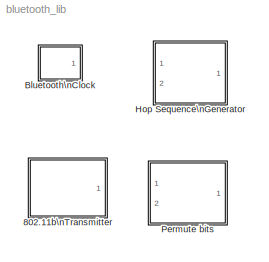
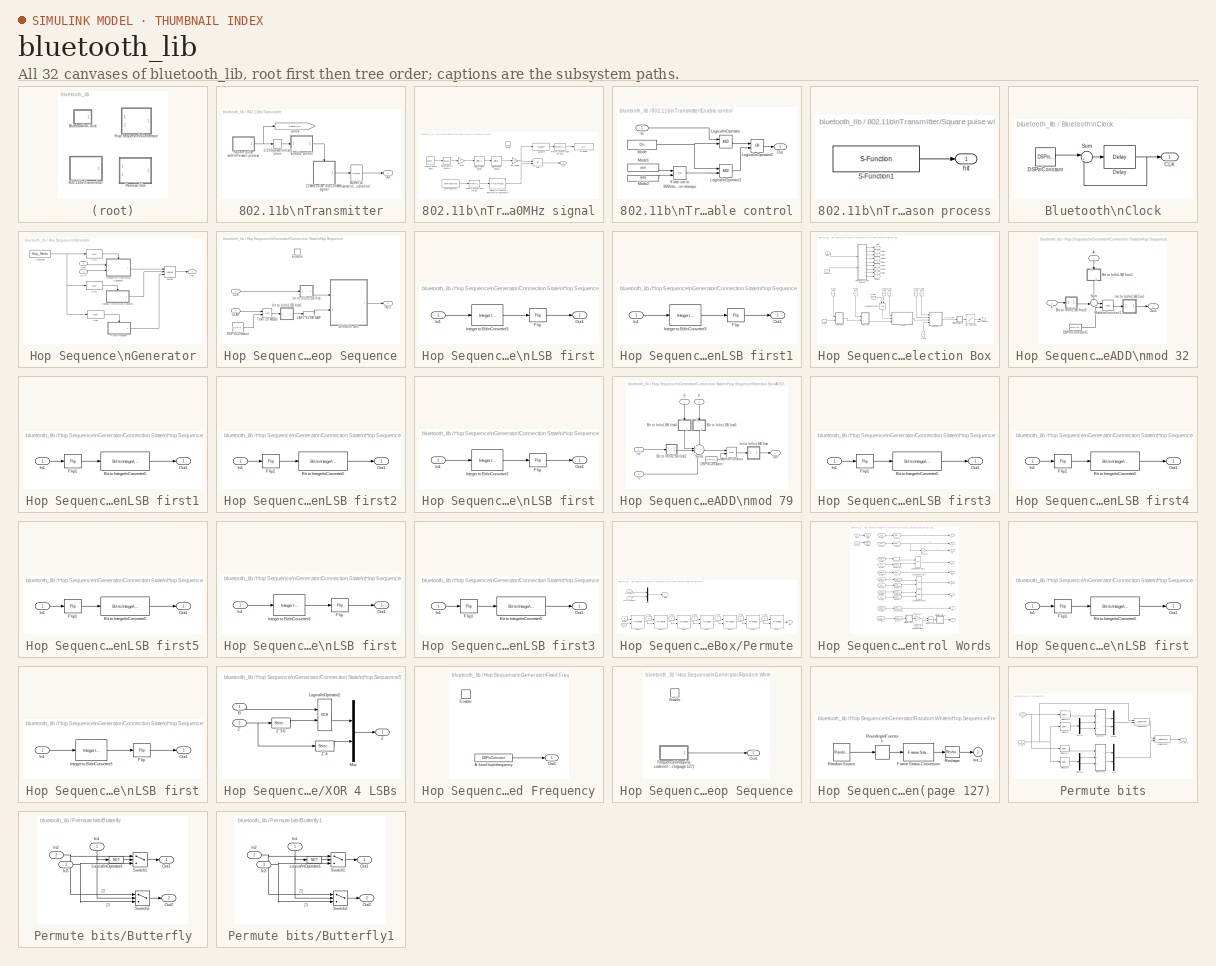
[diagram: thumbnail index - all 32 canvases of the model, root first then tree order]
MODEL bluetooth_lib
KIND library
BLOCK [SubSystem] 802.11b\nTransmitter
  MaskCallbackString = |||||||
  MaskDisplay = disp(['802.11b\\nInterferer\\n' str])
  MaskEnableString = on,on,on,on,on,on,on,on
  MaskIconFrame = on
  MaskIconOpaque = on
  MaskIconRotate = none
  MaskIconUnits = autoscale
  MaskInitialization = if On==1\n   str='On';\nelse\n  str='Off';\nend;\n\nadjusted_rate=rate/(1-rate*m); % account for finite packet length reducing rate\n
  MaskPromptString = Turn On 802.11|Average Rate (1/sec) (999 for constant)|Mean Length (secs)|Length Variance (sec^2)|Power|Frequency Number (0-78)|Rate Seed|Noise seed
  MaskStyleString = checkbox,edit,edit,edit,edit,edit,edit,edit
  MaskTabNameString = ,,,,,,,
  MaskToolTipString = on,on,on,on,on,on,on,on
  MaskTunableValueString = on,on,on,on,on,on,on,on
  MaskValueString = on|200|1e-3|0|0.1|39|rate_802_seed|awgn_802_seed
  MaskVarAliasString = ,,,,,,,
  MaskVariables = On=@1;rate=@2;m=@3;v=@4;power=@5;Freq_Number=@6;rate_seed=@7;awgn_seed=@8;
  MaskVisibilityString = on,on,on,on,on,on,on,on
  MinAlgLoopOccurrences = off
  Ports = [0, 1]
  PropExecContextAcrossSSBoundary = on
  RTWSystemCode = Auto
  TreatAsAtomicUnit = off
BLOCK [ZeroOrderHold] 802.11b\nTransmitter/1//100packet\nresolution
  SampleTime = (1/1600)/100
BLOCK [SubSystem] 802.11b\nTransmitter/22MHz noise in\n100MHz signal
  MinAlgLoopOccurrences = off
  Ports = [0, 1, 1]
  PropExecContextAcrossSSBoundary = on
  RTWSystemCode = Auto
  TreatAsAtomicUnit = on
BLOCK [Reference] 802.11b\nTransmitter/22MHz noise in\n100MHz signal/20MHz\nwhite noise  REF=dspsrcs4/Random\nSource
  CltLength = 12
  DataType = Double
  Diagnostics = AllowInheritedTsInSrc
  Inherit = off
  Max = 1
  Mean = 0
  Min = 0
  NormMethod = Ziggurat
  OutComplex = Complex
  Ports = [0, 1]
  RepMode = Specify seed
  SampFrame = 62500/500
  SampMode = Discrete
  SampTime = 1/20e6
  SourceBlock = dspsrcs4/Random\nSource
  SourceType = Random Source
  SrcType = Gaussian
  UserData = DataTag0
  UserDataPersistent = on
  Var = power
  rawSeed = awgn_seed
BLOCK [Reference] 802.11b\nTransmitter/22MHz noise in\n100MHz signal/DSP\nConstant  REF=dspsrcs4/DSP\nConstant
  FramebasedOutput = off
  InterpretAs1D = off
  Ports = [0, 1]
  SampleMode = Discrete
  ShowPortLabels = on
  SourceBlock = dspsrcs4/DSP\nConstant
  SourceType = DSP Constant
  Ts = .01/1600
  Value = Freq_Number
  additionalParams = off
  allowOverrides = on
  continuousOutput = Sample-based
  dataType = Inherit from 'Constant value'
  discreteOutput = Sample-based
  fracBitsMode = Best precision
  framePeriod = .01/1600
  isSigned = on
  numFracBits = 15
  sampTime = .01/1600
  udDataType = sfix(16)
  wordLen = 16
BLOCK [Reference] 802.11b\nTransmitter/22MHz noise in\n100MHz signal/Digital\nFilter Design  REF=dsparch4/Digital\nFilter Design
  Ports = [1, 1]
  ShowPortLabels = on
  SourceBlock = dsparch4/Digital\nFilter Design
  SourceType = Unknown
  UserData = DataTag1
  UserDataPersistent = on
BLOCK [Reference] 802.11b\nTransmitter/22MHz noise in\n100MHz signal/Digital\nFilter Design2  REF=dsparch4/Digital\nFilter Design
  Ports = [1, 1]
  ShowPortLabels = on
  SourceBlock = dsparch4/Digital\nFilter Design
  SourceType = Unknown
  UserData = DataTag2
  UserDataPersistent = on
BLOCK [EnablePort] 802.11b\nTransmitter/22MHz noise in\n100MHz signal/Enable
  Ports = []
BLOCK [Reference] 802.11b\nTransmitter/22MHz noise in\n100MHz signal/Frame Status\nConversion  REF=dspsigattribs/Frame Status\nConversion
  Ports = [1, 1]
  ShowPortLabels = off
  SourceBlock = dspsigattribs/Frame Status\nConversion
  SourceType = Frame Status Conversion
  growRefPort = off
  outframe = Frame-based
BLOCK [Reference] 802.11b\nTransmitter/22MHz noise in\n100MHz signal/Frame Status\nConversion1  REF=dspsigattribs/Frame Status\nConversion
  Ports = [1, 1]
  ShowPortLabels = off
  SourceBlock = dspsigattribs/Frame Status\nConversion
  SourceType = Frame Status Conversion
  growRefPort = off
  outframe = Sample-based
BLOCK [Gain] 802.11b\nTransmitter/22MHz noise in\n100MHz signal/Gain
  Gain = 5
BLOCK [Product] 802.11b\nTransmitter/22MHz noise in\n100MHz signal/Mix
  Ports = [2, 1]
  RndMeth = Floor
BLOCK [Reference] 802.11b\nTransmitter/22MHz noise in\n100MHz signal/Mixed to \none of bluetooth\nfrequencies\n  REF=commdigbbndfm2/M-FSK\nModulator\nBaseband
  Enc = Binary
  InType = Integer
  M = 79
  Ports = [1, 1]
  SourceBlock = commdigbbndfm2/M-FSK\nModulator\nBaseband
  SourceType = M-FSK Modulator Baseband
  freqSep = 1e6
  numSamp = 6.25e4/100
  phaseType = Continuous
BLOCK [Outport] 802.11b\nTransmitter/22MHz noise in\n100MHz signal/Out
  BusOutputAsStruct = off
  IconDisplay = Port number
  InitialOutput = 0
  OutputWhenDisabled = reset
BLOCK [Gain] 802.11b\nTransmitter/22MHz noise in\n100MHz signal/Set power
  Gain = 1.7
BLOCK [Display] 802.11b\nTransmitter/22MHz noise in\n100MHz signal/Tx power
  Decimation = 1
  Ports = [1]
BLOCK [Reference] 802.11b\nTransmitter/22MHz noise in\n100MHz signal/Upsample\nto 100MHz  REF=dspsigops/Upsample
  N = 5
  Ports = [1, 1]
  SourceBlock = dspsigops/Upsample
  SourceType = Upsample
  ic = 0
  mode = Maintain input frame rate
  phase = 0
BLOCK [Reference] 802.11b\nTransmitter/22MHz noise in\n100MHz signal/Variance  REF=dspstat3/Variance
  DialogController = dspDDGCreate
  DialogControllerArgs = DataTag3
  Ports = [1, 1]
  SourceBlock = dspstat3/Variance
  SourceType = Variance
  accumFracLength = 30
  accumMode = Same as product output
  accumWordLength = 32
  additionalParams = off
  allowOverrides = on
  outputFracLength = 30
  outputMode = Same as accumulator
  outputWordLength = 32
  overflowMode = off
  prodOutputFracLength = 30
  prodOutputMode = Same as input
  prodOutputWordLength = 32
  reset_popup = None
  roundingMode = Floor
  run = off
BLOCK [Reference] 802.11b\nTransmitter/Buffer to same\nframe-size\nas channel  REF=dspbuff3/Buffer
  N = 62500
  Ports = [1, 1]
  SourceBlock = dspbuff3/Buffer
  SourceType = Buffer
  V = 0
  ic = 0
BLOCK [SubSystem] 802.11b\nTransmitter/Enable control
  MaskDisplay = disp('Enable\\n\nLogic')
  MaskIconFrame = on
  MaskIconOpaque = on
  MaskIconRotate = none
  MaskIconUnits = autoscale
  MinAlgLoopOccurrences = off
  Ports = [1, 1]
  PropExecContextAcrossSSBoundary = on
  RTWSystemCode = Auto
  TreatAsAtomicUnit = off
BLOCK [RelationalOperator] 802.11b\nTransmitter/Enable control/If rate set to 999\nturn-on always
  Operator = ==
BLOCK [Inport] 802.11b\nTransmitter/Enable control/In
  IconDisplay = Port number
  LatchInput = off
BLOCK [Logic] 802.11b\nTransmitter/Enable control/Logical\nOperator
  Ports = [2, 1]
BLOCK [Logic] 802.11b\nTransmitter/Enable control/Logical\nOperator1
  Ports = [2, 1]
BLOCK [Logic] 802.11b\nTransmitter/Enable control/Logical\nOperator2
  Operator = OR
  Ports = [2, 1]
BLOCK [Constant] 802.11b\nTransmitter/Enable control/Mode
  Value = On
BLOCK [Constant] 802.11b\nTransmitter/Enable control/Mode1
  Value = rate
BLOCK [Constant] 802.11b\nTransmitter/Enable control/Mode2
  Value = 999
BLOCK [Outport] 802.11b\nTransmitter/Enable control/Out
  BusOutputAsStruct = off
  IconDisplay = Port number
BLOCK [Goto] 802.11b\nTransmitter/Goto4
  DialogController = Simulink.DDGSource
  GotoTag = Packet_Envelope_802
  TagVisibility = global
BLOCK [Outport] 802.11b\nTransmitter/Out
  BusOutputAsStruct = off
  IconDisplay = Port number
BLOCK [SubSystem] 802.11b\nTransmitter/Square pulse with\nPoisson process
  MaskCallbackString = |||
  MaskDisplay = plot(exp(-(0:.4:3)))
  MaskEnableString = on,on,on,on
  MaskIconFrame = on
  MaskIconOpaque = off
  MaskIconRotate = none
  MaskIconUnits = autoscale
  MaskPromptString = Average Rate (1/sec)|Mean Length|Length Variance|Seed
  MaskStyleString = edit,edit,edit,edit
  MaskTabNameString = ,,,
  MaskToolTipString = on,on,on,on
  MaskTunableValueString = on,on,on,on
  MaskType = Poisson process
  MaskValueString = adjusted_rate|m|v|rate_seed
  MaskVarAliasString = ,,,
  MaskVariables = rate=@1;m=@2;v=@3;seed=@4;
  MaskVisibilityString = on,on,on,on
  MinAlgLoopOccurrences = off
  Ports = [0, 1]
  PropExecContextAcrossSSBoundary = on
  RTWSystemCode = Auto
  TreatAsAtomicUnit = off
BLOCK [S-Function] 802.11b\nTransmitter/Square pulse with\nPoisson process/S-Function1
  FunctionName = bluetooth_poissonevent
  Parameters = adjusted_rate,m,v,seed
  Ports = [0, 1]
BLOCK [Outport] 802.11b\nTransmitter/Square pulse with\nPoisson process/hit
  BusOutputAsStruct = off
  IconDisplay = Port number
  InitialOutput = 0
BLOCK [SubSystem] Bluetooth\nClock
  MaskEnableString = on
  MaskIconFrame = on
  MaskIconOpaque = on
  MaskIconRotate = none
  MaskIconUnits = autoscale
  MaskPromptString = Sample Time
  MaskStyleString = edit
  MaskToolTipString = on
  MaskTunableValueString = on
  MaskType = Bluetooth Clock
  MaskValueString = (1/1600)/2
  MaskVariables = Ts=@1;
  MaskVisibilityString = on
  MinAlgLoopOccurrences = off
  Ports = [0, 1]
  PropExecContextAcrossSSBoundary = on
  RTWSystemCode = Auto
  TreatAsAtomicUnit = off
BLOCK [Outport] Bluetooth\nClock/CLK
  BusOutputAsStruct = off
  IconDisplay = Port number
BLOCK [Reference] Bluetooth\nClock/DSP\nConstant  REF=dspsrcs4/DSP\nConstant
  FramebasedOutput = off
  InterpretAs1D = off
  Ports = [0, 1]
  SampleMode = Discrete
  SourceBlock = dspsrcs4/DSP\nConstant
  SourceType = DSP Constant
  Ts = Ts
  Value = 1
  additionalParams = off
  allowOverrides = on
  continuousOutput = Sample-based
  dataType = Inherit from 'Constant value'
  discreteOutput = Sample-based
  fracBitsMode = Best precision
  framePeriod = Ts
  numFracBits = 15
  sampTime = Ts
  udDataType = sfix(16)
  wordLen = 16
BLOCK [Reference] Bluetooth\nClock/Delay  REF=dspsigops/Delay
  Ports = [1, 1]
  SourceBlock = dspsigops/Delay
  SourceType = Delay
  delay = 1
  dif_ic_for_ch = off
  dif_ic_for_dly = off
  dly_unit = Samples
  ic = 0
  ic_detail = off
  reset_popup = None
BLOCK [Sum] Bluetooth\nClock/Sum
  IconShape = round
  Inputs = |++
  Ports = [2, 1]
BLOCK [SubSystem] Hop Sequence\nGenerator
  MaskCallbackString = ||
  MaskDescription = Generate a sequence of hop frequencies in the range 0 to 78. Can generate either the connection state hop sequence, a random white sequence, or be fixed.
  MaskEnableString = on,on,on
  MaskIconFrame = on
  MaskIconOpaque = on
  MaskIconRotate = none
  MaskIconUnits = autoscale
  MaskPromptString = Hop mode|Hop seed (for white random sequence option)|Fixed hop frequency (for fixed option)
  MaskStyleString = popup(Connection State Hop Sequence|Random White Hop Sequence|Fixed Frequency),edit,edit
  MaskTabNameString = ,,
  MaskToolTipString = on,on,on
  MaskTunableValueString = on,on,on
  MaskType = Hop Sequence Generator
  MaskValueString = Connection State Hop Sequence|hop_seed|fixed_hop_freq
  MaskVarAliasString = ,,
  MaskVariables = Hop_Mode=@1;hop_seed=@2;fixed_hop_freq=@3;
  MaskVisibilityString = on,on,on
  MinAlgLoopOccurrences = off
  Ports = [2, 1]
  PropExecContextAcrossSSBoundary = on
  RTWSystemCode = Auto
  TreatAsAtomicUnit = off
BLOCK [Inport] Hop Sequence\nGenerator/CLK
  IconDisplay = Port number
  LatchInput = off
BLOCK [SubSystem] Hop Sequence\nGenerator/Connection State\nHop Sequence
  MinAlgLoopOccurrences = off
  Ports = [2, 1, 1]
  PropExecContextAcrossSSBoundary = on
  RTWSystemCode = Auto
  TreatAsAtomicUnit = on
BLOCK [Inport] Hop Sequence\nGenerator/Connection State\nHop Sequence/CLK
  IconDisplay = Port number
  LatchInput = off
BLOCK [Reference] Hop Sequence\nGenerator/Connection State\nHop Sequence/DSP\nConstant  REF=dspsrcs4/DSP\nConstant
  FramebasedOutput = off
  InterpretAs1D = off
  Ports = [0, 1]
  SampleMode = Discrete
  SourceBlock = dspsrcs4/DSP\nConstant
  SourceType = DSP Constant
  Ts = (1/1600)/2
  Value = 2^28
BLOCK [EnablePort] Hop Sequence\nGenerator/Connection State\nHop Sequence/Enable
  Ports = []
BLOCK [SubSystem] Hop Sequence\nGenerator/Connection State\nHop Sequence/Int to bit\nLSB first
  MaskDisplay = disp('Int to bit\\n\nLSB first');
  MaskEnableString = on
  MaskIconFrame = on
  MaskIconOpaque = on
  MaskIconRotate = none
  MaskIconUnits = autoscale
  MaskPromptString = Number of bits
  MaskStyleString = edit
  MaskToolTipString = on
  MaskTunableValueString = on
  MaskValueString = 28
  MaskVariables = Numbits=@1;
  MaskVisibilityString = on
  MinAlgLoopOccurrences = off
  Ports = [1, 1]
  PropExecContextAcrossSSBoundary = on
  RTWSystemCode = Auto
  TreatAsAtomicUnit = off
BLOCK [Reference] Hop Sequence\nGenerator/Connection State\nHop Sequence/Int to bit\nLSB first/Flip  REF=dspindex/Flip
  Ports = [1, 1]
  SourceBlock = dspindex/Flip
  SourceType = Flip
  dim = Columns
BLOCK [Inport] Hop Sequence\nGenerator/Connection State\nHop Sequence/Int to bit\nLSB first/In1
  IconDisplay = Port number
  LatchInput = off
BLOCK [Reference] Hop Sequence\nGenerator/Connection State\nHop Sequence/Int to bit\nLSB first/Integer to Bit\nConverter3  REF=commutil2/Integer to Bit\nConverter
  Ports = [1, 1]
  SourceBlock = commutil2/Integer to Bit\nConverter
  SourceType = Integer to Bit Converter
  nbits = Numbits
BLOCK [Outport] Hop Sequence\nGenerator/Connection State\nHop Sequence/Int to bit\nLSB first/Out1
  BusOutputAsStruct = off
  IconDisplay = Port number
BLOCK [SubSystem] Hop Sequence\nGenerator/Connection State\nHop Sequence/Int to bit\nLSB first1
  MaskDisplay = disp('Int to bit\\n\nLSB first');
  MaskEnableString = on
  MaskIconFrame = on
  MaskIconOpaque = on
  MaskIconRotate = none
  MaskIconUnits = autoscale
  MaskPromptString = Number of bits
  MaskStyleString = edit
  MaskToolTipString = on
  MaskTunableValueString = on
  MaskValueString = 28
  MaskVariables = Numbits=@1;
  MaskVisibilityString = on
  MinAlgLoopOccurrences = off
  Ports = [1, 1]
  PropExecContextAcrossSSBoundary = on
  RTWSystemCode = Auto
  TreatAsAtomicUnit = off
BLOCK [Reference] Hop Sequence\nGenerator/Connection State\nHop Sequence/Int to bit\nLSB first1/Flip  REF=dspindex/Flip
  Ports = [1, 1]
  SourceBlock = dspindex/Flip
  SourceType = Flip
  dim = Columns
BLOCK [Inport] Hop Sequence\nGenerator/Connection State\nHop Sequence/Int to bit\nLSB first1/In1
  IconDisplay = Port number
  LatchInput = off
BLOCK [Reference] Hop Sequence\nGenerator/Connection State\nHop Sequence/Int to bit\nLSB first1/Integer to Bit\nConverter3  REF=commutil2/Integer to Bit\nConverter
  Ports = [1, 1]
  SourceBlock = commutil2/Integer to Bit\nConverter
  SourceType = Integer to Bit Converter
  nbits = Numbits
BLOCK [Outport] Hop Sequence\nGenerator/Connection State\nHop Sequence/Int to bit\nLSB first1/Out1
  BusOutputAsStruct = off
  IconDisplay = Port number
BLOCK [Selector] Hop Sequence\nGenerator/Connection State\nHop Sequence/LAP+ 4LSB UAP
  Elements = [0:27] +1
  InputPortWidth = 28
  Ports = [1, 1]
BLOCK [Outport] Hop Sequence\nGenerator/Connection State\nHop Sequence/Out1
  BusOutputAsStruct = off
  IconDisplay = Port number
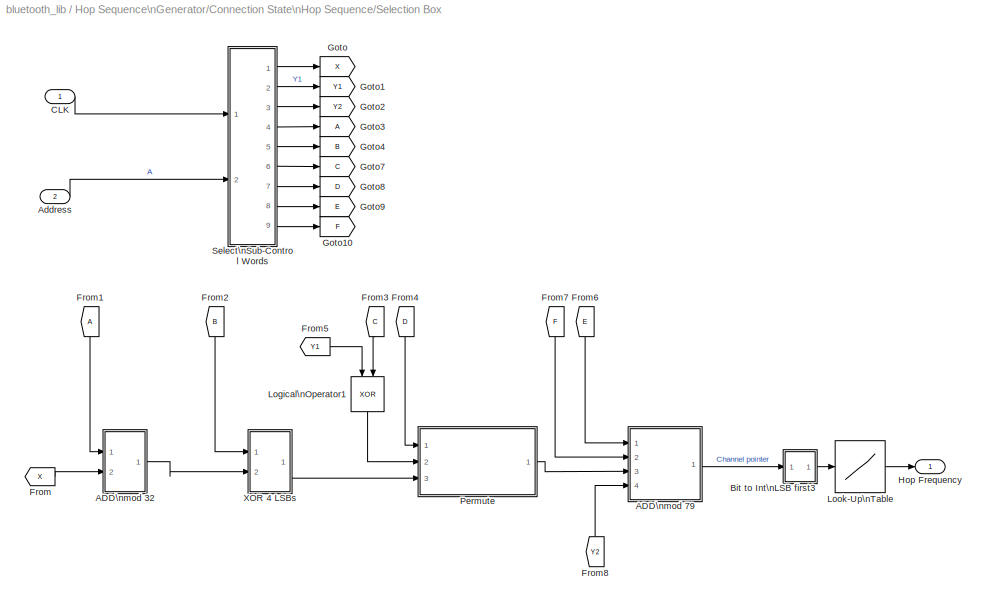
BLOCK [SubSystem] Hop Sequence\nGenerator/Connection State\nHop Sequence/Selection Box
  MinAlgLoopOccurrences = off
  Ports = [2, 1]
  PropExecContextAcrossSSBoundary = on
  RTWSystemCode = Auto
  TreatAsAtomicUnit = off
BLOCK [SubSystem] Hop Sequence\nGenerator/Connection State\nHop Sequence/Selection Box/ADD\nmod 32
  MinAlgLoopOccurrences = off
  Ports = [2, 1]
  PropExecContextAcrossSSBoundary = on
  RTWSystemCode = Auto
  TreatAsAtomicUnit = off
BLOCK [Inport] Hop Sequence\nGenerator/Connection State\nHop Sequence/Selection Box/ADD\nmod 32/A
  IconDisplay = Port number
  LatchInput = off
BLOCK [SubSystem] Hop Sequence\nGenerator/Connection State\nHop Sequence/Selection Box/ADD\nmod 32/Bit to Int\nLSB first1
  MaskDisplay = disp('Bit to Int\\n\nLSB first');
  MaskEnableString = on
  MaskIconFrame = on
  MaskIconOpaque = on
  MaskIconRotate = none
  MaskIconUnits = autoscale
  MaskPromptString = Number of bits
  MaskStyleString = edit
  MaskToolTipString = on
  MaskTunableValueString = on
  MaskValueString = 5
  MaskVariables = Numbits=@1;
  MaskVisibilityString = on
  MinAlgLoopOccurrences = off
  Ports = [1, 1]
  PropExecContextAcrossSSBoundary = on
  RTWSystemCode = Auto
  TreatAsAtomicUnit = off
BLOCK [Reference] Hop Sequence\nGenerator/Connection State\nHop Sequence/Selection Box/ADD\nmod 32/Bit to Int\nLSB first1/Bit to Integer\nConverter5  REF=commutil2/Bit to Integer\nConverter
  Ports = [1, 1]
  SourceBlock = commutil2/Bit to Integer\nConverter
  SourceType = Bit to Integer Converter
  nbits = Numbits
BLOCK [Reference] Hop Sequence\nGenerator/Connection State\nHop Sequence/Selection Box/ADD\nmod 32/Bit to Int\nLSB first1/Flip1  REF=dspindex/Flip
  Ports = [1, 1]
  SourceBlock = dspindex/Flip
  SourceType = Flip
  dim = Columns
BLOCK [Inport] Hop Sequence\nGenerator/Connection State\nHop Sequence/Selection Box/ADD\nmod 32/Bit to Int\nLSB first1/In1
  IconDisplay = Port number
  LatchInput = off
BLOCK [Outport] Hop Sequence\nGenerator/Connection State\nHop Sequence/Selection Box/ADD\nmod 32/Bit to Int\nLSB first1/Out1
  BusOutputAsStruct = off
  IconDisplay = Port number
BLOCK [SubSystem] Hop Sequence\nGenerator/Connection State\nHop Sequence/Selection Box/ADD\nmod 32/Bit to Int\nLSB first2
  MaskDisplay = disp('Bit to Int\\n\nLSB first');
  MaskEnableString = on
  MaskIconFrame = on
  MaskIconOpaque = on
  MaskIconRotate = none
  MaskIconUnits = autoscale
  MaskPromptString = Number of bits
  MaskStyleString = edit
  MaskToolTipString = on
  MaskTunableValueString = on
  MaskValueString = 5
  MaskVariables = Numbits=@1;
  MaskVisibilityString = on
  MinAlgLoopOccurrences = off
  Ports = [1, 1]
  PropExecContextAcrossSSBoundary = on
  RTWSystemCode = Auto
  TreatAsAtomicUnit = off
BLOCK [Reference] Hop Sequence\nGenerator/Connection State\nHop Sequence/Selection Box/ADD\nmod 32/Bit to Int\nLSB first2/Bit to Integer\nConverter5  REF=commutil2/Bit to Integer\nConverter
  Ports = [1, 1]
  SourceBlock = commutil2/Bit to Integer\nConverter
  SourceType = Bit to Integer Converter
  nbits = Numbits
BLOCK [Reference] Hop Sequence\nGenerator/Connection State\nHop Sequence/Selection Box/ADD\nmod 32/Bit to Int\nLSB first2/Flip1  REF=dspindex/Flip
  Ports = [1, 1]
  SourceBlock = dspindex/Flip
  SourceType = Flip
  dim = Columns
BLOCK [Inport] Hop Sequence\nGenerator/Connection State\nHop Sequence/Selection Box/ADD\nmod 32/Bit to Int\nLSB first2/In1
  IconDisplay = Port number
  LatchInput = off
BLOCK [Outport] Hop Sequence\nGenerator/Connection State\nHop Sequence/Selection Box/ADD\nmod 32/Bit to Int\nLSB first2/Out1
  BusOutputAsStruct = off
  IconDisplay = Port number
BLOCK [Reference] Hop Sequence\nGenerator/Connection State\nHop Sequence/Selection Box/ADD\nmod 32/DSP\nConstant1  REF=dspsrcs4/DSP\nConstant
  FramebasedOutput = off
  InterpretAs1D = off
  Ports = [0, 1]
  SampleMode = Discrete
  SourceBlock = dspsrcs4/DSP\nConstant
  SourceType = DSP Constant
  Ts = (1/1600)/2
  Value = 32
BLOCK [SubSystem] Hop Sequence\nGenerator/Connection State\nHop Sequence/Selection Box/ADD\nmod 32/Int to bit\nLSB first
  MaskDisplay = disp('Int to bit\\n\nLSB first');
  MaskEnableString = on
  MaskIconFrame = on
  MaskIconOpaque = on
  MaskIconRotate = none
  MaskIconUnits = autoscale
  MaskPromptString = Number of bits
  MaskStyleString = edit
  MaskToolTipString = on
  MaskTunableValueString = on
  MaskValueString = 5
  MaskVariables = Numbits=@1;
  MaskVisibilityString = on
  MinAlgLoopOccurrences = off
  Ports = [1, 1]
  PropExecContextAcrossSSBoundary = on
  RTWSystemCode = Auto
  TreatAsAtomicUnit = off
BLOCK [Reference] Hop Sequence\nGenerator/Connection State\nHop Sequence/Selection Box/ADD\nmod 32/Int to bit\nLSB first/Flip  REF=dspindex/Flip
  Ports = [1, 1]
  SourceBlock = dspindex/Flip
  SourceType = Flip
  dim = Columns
BLOCK [Inport] Hop Sequence\nGenerator/Connection State\nHop Sequence/Selection Box/ADD\nmod 32/Int to bit\nLSB first/In1
  IconDisplay = Port number
  LatchInput = off
BLOCK [Reference] Hop Sequence\nGenerator/Connection State\nHop Sequence/Selection Box/ADD\nmod 32/Int to bit\nLSB first/Integer to Bit\nConverter3  REF=commutil2/Integer to Bit\nConverter
  Ports = [1, 1]
  SourceBlock = commutil2/Integer to Bit\nConverter
  SourceType = Integer to Bit Converter
  nbits = Numbits
BLOCK [Outport] Hop Sequence\nGenerator/Connection State\nHop Sequence/Selection Box/ADD\nmod 32/Int to bit\nLSB first/Out1
  BusOutputAsStruct = off
  IconDisplay = Port number
BLOCK [Math] Hop Sequence\nGenerator/Connection State\nHop Sequence/Selection Box/ADD\nmod 32/Math\nFunction1
  Operator = mod
  Ports = [2, 1]
BLOCK [Outport] Hop Sequence\nGenerator/Connection State\nHop Sequence/Selection Box/ADD\nmod 32/Out1
  BusOutputAsStruct = off
  IconDisplay = Port number
BLOCK [Sum] Hop Sequence\nGenerator/Connection State\nHop Sequence/Selection Box/ADD\nmod 32/Sum
  IconShape = round
  Inputs = ++|
  Ports = [2, 1]
BLOCK [Inport] Hop Sequence\nGenerator/Connection State\nHop Sequence/Selection Box/ADD\nmod 32/X
  IconDisplay = Port number
  LatchInput = off
  Port = 2
BLOCK [SubSystem] Hop Sequence\nGenerator/Connection State\nHop Sequence/Selection Box/ADD\nmod 79
  MinAlgLoopOccurrences = off
  Ports = [4, 1]
  PropExecContextAcrossSSBoundary = on
  RTWSystemCode = Auto
  TreatAsAtomicUnit = off
BLOCK [SubSystem] Hop Sequence\nGenerator/Connection State\nHop Sequence/Selection Box/ADD\nmod 79/Bit to Int\nLSB first3
  MaskDisplay = disp('Bit to Int\\n\nLSB first');
  MaskEnableString = on
  MaskIconFrame = on
  MaskIconOpaque = on
  MaskIconRotate = none
  MaskIconUnits = autoscale
  MaskPromptString = Number of bits
  MaskStyleString = edit
  MaskToolTipString = on
  MaskTunableValueString = on
  MaskValueString = 5
  MaskVariables = Numbits=@1;
  MaskVisibilityString = on
  MinAlgLoopOccurrences = off
  Ports = [1, 1]
  PropExecContextAcrossSSBoundary = on
  RTWSystemCode = Auto
  TreatAsAtomicUnit = off
BLOCK [Reference] Hop Sequence\nGenerator/Connection State\nHop Sequence/Selection Box/ADD\nmod 79/Bit to Int\nLSB first3/Bit to Integer\nConverter5  REF=commutil2/Bit to Integer\nConverter
  Ports = [1, 1]
  SourceBlock = commutil2/Bit to Integer\nConverter
  SourceType = Bit to Integer Converter
  nbits = Numbits
BLOCK [Reference] Hop Sequence\nGenerator/Connection State\nHop Sequence/Selection Box/ADD\nmod 79/Bit to Int\nLSB first3/Flip1  REF=dspindex/Flip
  Ports = [1, 1]
  SourceBlock = dspindex/Flip
  SourceType = Flip
  dim = Columns
BLOCK [Inport] Hop Sequence\nGenerator/Connection State\nHop Sequence/Selection Box/ADD\nmod 79/Bit to Int\nLSB first3/In1
  IconDisplay = Port number
  LatchInput = off
BLOCK [Outport] Hop Sequence\nGenerator/Connection State\nHop Sequence/Selection Box/ADD\nmod 79/Bit to Int\nLSB first3/Out1
  BusOutputAsStruct = off
  IconDisplay = Port number
BLOCK [SubSystem] Hop Sequence\nGenerator/Connection State\nHop Sequence/Selection Box/ADD\nmod 79/Bit to Int\nLSB first4
  MaskDisplay = disp('Bit to Int\\n\nLSB first');
  MaskEnableString = on
  MaskIconFrame = on
  MaskIconOpaque = on
  MaskIconRotate = none
  MaskIconUnits = autoscale
  MaskPromptString = Number of bits
  MaskStyleString = edit
  MaskToolTipString = on
  MaskTunableValueString = on
  MaskValueString = 7
  MaskVariables = Numbits=@1;
  MaskVisibilityString = on
  MinAlgLoopOccurrences = off
  Ports = [1, 1]
  PropExecContextAcrossSSBoundary = on
  RTWSystemCode = Auto
  TreatAsAtomicUnit = off
BLOCK [Reference] Hop Sequence\nGenerator/Connection State\nHop Sequence/Selection Box/ADD\nmod 79/Bit to Int\nLSB first4/Bit to Integer\nConverter5  REF=commutil2/Bit to Integer\nConverter
  Ports = [1, 1]
  SourceBlock = commutil2/Bit to Integer\nConverter
  SourceType = Bit to Integer Converter
  nbits = Numbits
BLOCK [Reference] Hop Sequence\nGenerator/Connection State\nHop Sequence/Selection Box/ADD\nmod 79/Bit to Int\nLSB first4/Flip1  REF=dspindex/Flip
  Ports = [1, 1]
  SourceBlock = dspindex/Flip
  SourceType = Flip
  dim = Columns
BLOCK [Inport] Hop Sequence\nGenerator/Connection State\nHop Sequence/Selection Box/ADD\nmod 79/Bit to Int\nLSB first4/In1
  IconDisplay = Port number
  LatchInput = off
BLOCK [Outport] Hop Sequence\nGenerator/Connection State\nHop Sequence/Selection Box/ADD\nmod 79/Bit to Int\nLSB first4/Out1
  BusOutputAsStruct = off
  IconDisplay = Port number
BLOCK [SubSystem] Hop Sequence\nGenerator/Connection State\nHop Sequence/Selection Box/ADD\nmod 79/Bit to Int\nLSB first5
  MaskDisplay = disp('Bit to Int\\n\nLSB first');
  MaskEnableString = on
  MaskIconFrame = on
  MaskIconOpaque = on
  MaskIconRotate = none
  MaskIconUnits = autoscale
  MaskPromptString = Number of bits
  MaskStyleString = edit
  MaskToolTipString = on
  MaskTunableValueString = on
  MaskValueString = 7
  MaskVariables = Numbits=@1;
  MaskVisibilityString = on
  MinAlgLoopOccurrences = off
  Ports = [1, 1]
  PropExecContextAcrossSSBoundary = on
  RTWSystemCode = Auto
  TreatAsAtomicUnit = off
BLOCK [Reference] Hop Sequence\nGenerator/Connection State\nHop Sequence/Selection Box/ADD\nmod 79/Bit to Int\nLSB first5/Bit to Integer\nConverter5  REF=commutil2/Bit to Integer\nConverter
  Ports = [1, 1]
  SourceBlock = commutil2/Bit to Integer\nConverter
  SourceType = Bit to Integer Converter
  nbits = Numbits
BLOCK [Reference] Hop Sequence\nGenerator/Connection State\nHop Sequence/Selection Box/ADD\nmod 79/Bit to Int\nLSB first5/Flip1  REF=dspindex/Flip
  Ports = [1, 1]
  SourceBlock = dspindex/Flip
  SourceType = Flip
  dim = Columns
BLOCK [Inport] Hop Sequence\nGenerator/Connection State\nHop Sequence/Selection Box/ADD\nmod 79/Bit to Int\nLSB first5/In1
  IconDisplay = Port number
  LatchInput = off
BLOCK [Outport] Hop Sequence\nGenerator/Connection State\nHop Sequence/Selection Box/ADD\nmod 79/Bit to Int\nLSB first5/Out1
  BusOutputAsStruct = off
  IconDisplay = Port number
BLOCK [Reference] Hop Sequence\nGenerator/Connection State\nHop Sequence/Selection Box/ADD\nmod 79/DSP\nConstant  REF=dspsrcs4/DSP\nConstant
  FramebasedOutput = off
  InterpretAs1D = off
  Ports = [0, 1]
  SampleMode = Discrete
  SourceBlock = dspsrcs4/DSP\nConstant
  SourceType = DSP Constant
  Ts = (1/1600)/2
  Value = 79
BLOCK [Inport] Hop Sequence\nGenerator/Connection State\nHop Sequence/Selection Box/ADD\nmod 79/E
  IconDisplay = Port number
  LatchInput = off
BLOCK [Inport] Hop Sequence\nGenerator/Connection State\nHop Sequence/Selection Box/ADD\nmod 79/F
  IconDisplay = Port number
  LatchInput = off
  Port = 2
BLOCK [Inport] Hop Sequence\nGenerator/Connection State\nHop Sequence/Selection Box/ADD\nmod 79/In
  IconDisplay = Port number
  LatchInput = off
  Port = 3
BLOCK [SubSystem] Hop Sequence\nGenerator/Connection State\nHop Sequence/Selection Box/ADD\nmod 79/Int to bit\nLSB first
  MaskDisplay = disp('Int to bit\\n\nLSB first');
  MaskEnableString = on
  MaskIconFrame = on
  MaskIconOpaque = on
  MaskIconRotate = none
  MaskIconUnits = autoscale
  MaskPromptString = Number of bits
  MaskStyleString = edit
  MaskToolTipString = on
  MaskTunableValueString = on
  MaskValueString = 7
  MaskVariables = Numbits=@1;
  MaskVisibilityString = on
  MinAlgLoopOccurrences = off
  Ports = [1, 1]
  PropExecContextAcrossSSBoundary = on
  RTWSystemCode = Auto
  TreatAsAtomicUnit = off
BLOCK [Reference] Hop Sequence\nGenerator/Connection State\nHop Sequence/Selection Box/ADD\nmod 79/Int to bit\nLSB first/Flip  REF=dspindex/Flip
  Ports = [1, 1]
  SourceBlock = dspindex/Flip
  SourceType = Flip
  dim = Columns
BLOCK [Inport] Hop Sequence\nGenerator/Connection State\nHop Sequence/Selection Box/ADD\nmod 79/Int to bit\nLSB first/In1
  IconDisplay = Port number
  LatchInput = off
BLOCK [Reference] Hop Sequence\nGenerator/Connection State\nHop Sequence/Selection Box/ADD\nmod 79/Int to bit\nLSB first/Integer to Bit\nConverter3  REF=commutil2/Integer to Bit\nConverter
  Ports = [1, 1]
  SourceBlock = commutil2/Integer to Bit\nConverter
  SourceType = Integer to Bit Converter
  nbits = Numbits
BLOCK [Outport] Hop Sequence\nGenerator/Connection State\nHop Sequence/Selection Box/ADD\nmod 79/Int to bit\nLSB first/Out1
  BusOutputAsStruct = off
  IconDisplay = Port number
BLOCK [Math] Hop Sequence\nGenerator/Connection State\nHop Sequence/Selection Box/ADD\nmod 79/Math\nFunction
  Operator = mod
  Ports = [2, 1]
BLOCK [Outport] Hop Sequence\nGenerator/Connection State\nHop Sequence/Selection Box/ADD\nmod 79/Out
  BusOutputAsStruct = off
  IconDisplay = Port number
BLOCK [Sum] Hop Sequence\nGenerator/Connection State\nHop Sequence/Selection Box/ADD\nmod 79/Sum1
  IconShape = round
  Inputs = +++|+
  Ports = [4, 1]
BLOCK [Inport] Hop Sequence\nGenerator/Connection State\nHop Sequence/Selection Box/ADD\nmod 79/Y2
  IconDisplay = Port number
  LatchInput = off
  Port = 4
BLOCK [Inport] Hop Sequence\nGenerator/Connection State\nHop Sequence/Selection Box/Address
  IconDisplay = Port number
  LatchInput = off
  Port = 2
BLOCK [SubSystem] Hop Sequence\nGenerator/Connection State\nHop Sequence/Selection Box/Bit to Int\nLSB first3
  MaskDisplay = disp('Bit to Int\\n\nLSB first');
  MaskEnableString = on
  MaskIconFrame = on
  MaskIconOpaque = on
  MaskIconRotate = none
  MaskIconUnits = autoscale
  MaskPromptString = Number of bits
  MaskStyleString = edit
  MaskToolTipString = on
  MaskTunableValueString = on
  MaskValueString = 7
  MaskVariables = Numbits=@1;
  MaskVisibilityString = on
  MinAlgLoopOccurrences = off
  Ports = [1, 1]
  PropExecContextAcrossSSBoundary = on
  RTWSystemCode = Auto
  TreatAsAtomicUnit = off
BLOCK [Reference] Hop Sequence\nGenerator/Connection State\nHop Sequence/Selection Box/Bit to Int\nLSB first3/Bit to Integer\nConverter5  REF=commutil2/Bit to Integer\nConverter
  Ports = [1, 1]
  SourceBlock = commutil2/Bit to Integer\nConverter
  SourceType = Bit to Integer Converter
  nbits = Numbits
BLOCK [Reference] Hop Sequence\nGenerator/Connection State\nHop Sequence/Selection Box/Bit to Int\nLSB first3/Flip1  REF=dspindex/Flip
  Ports = [1, 1]
  SourceBlock = dspindex/Flip
  SourceType = Flip
  dim = Columns
BLOCK [Inport] Hop Sequence\nGenerator/Connection State\nHop Sequence/Selection Box/Bit to Int\nLSB first3/In1
  IconDisplay = Port number
  LatchInput = off
BLOCK [Outport] Hop Sequence\nGenerator/Connection State\nHop Sequence/Selection Box/Bit to Int\nLSB first3/Out1
  BusOutputAsStruct = off
  IconDisplay = Port number
BLOCK [Inport] Hop Sequence\nGenerator/Connection State\nHop Sequence/Selection Box/CLK
  IconDisplay = Port number
  LatchInput = off
BLOCK [From] Hop Sequence\nGenerator/Connection State\nHop Sequence/Selection Box/From
  CloseFcn = tagdialog Close
  DialogController = Simulink.DDGSource
  GotoTag = X
BLOCK [From] Hop Sequence\nGenerator/Connection State\nHop Sequence/Selection Box/From1
  CloseFcn = tagdialog Close
  DialogController = Simulink.DDGSource
  GotoTag = A
BLOCK [From] Hop Sequence\nGenerator/Connection State\nHop Sequence/Selection Box/From2
  CloseFcn = tagdialog Close
  DialogController = Simulink.DDGSource
  GotoTag = B
BLOCK [From] Hop Sequence\nGenerator/Connection State\nHop Sequence/Selection Box/From3
  CloseFcn = tagdialog Close
  DialogController = Simulink.DDGSource
  GotoTag = C
BLOCK [From] Hop Sequence\nGenerator/Connection State\nHop Sequence/Selection Box/From4
  CloseFcn = tagdialog Close
  DialogController = Simulink.DDGSource
  GotoTag = D
BLOCK [From] Hop Sequence\nGenerator/Connection State\nHop Sequence/Selection Box/From5
  CloseFcn = tagdialog Close
  DialogController = Simulink.DDGSource
  GotoTag = Y1
BLOCK [From] Hop Sequence\nGenerator/Connection State\nHop Sequence/Selection Box/From6
  CloseFcn = tagdialog Close
  DialogController = Simulink.DDGSource
  GotoTag = E
BLOCK [From] Hop Sequence\nGenerator/Connection State\nHop Sequence/Selection Box/From7
  CloseFcn = tagdialog Close
  DialogController = Simulink.DDGSource
  GotoTag = F
BLOCK [From] Hop Sequence\nGenerator/Connection State\nHop Sequence/Selection Box/From8
  CloseFcn = tagdialog Close
  DialogController = Simulink.DDGSource
  GotoTag = Y2
BLOCK [Goto] Hop Sequence\nGenerator/Connection State\nHop Sequence/Selection Box/Goto
  DialogController = Simulink.DDGSource
  GotoTag = X
  TagVisibility = local
BLOCK [Goto] Hop Sequence\nGenerator/Connection State\nHop Sequence/Selection Box/Goto1
  DialogController = Simulink.DDGSource
  GotoTag = Y1
  TagVisibility = local
BLOCK [Goto] Hop Sequence\nGenerator/Connection State\nHop Sequence/Selection Box/Goto10
  DialogController = Simulink.DDGSource
  GotoTag = F
  TagVisibility = local
BLOCK [Goto] Hop Sequence\nGenerator/Connection State\nHop Sequence/Selection Box/Goto2
  DialogController = Simulink.DDGSource
  GotoTag = Y2
  TagVisibility = local
BLOCK [Goto] Hop Sequence\nGenerator/Connection State\nHop Sequence/Selection Box/Goto3
  DialogController = Simulink.DDGSource
  GotoTag = A
  TagVisibility = local
BLOCK [Goto] Hop Sequence\nGenerator/Connection State\nHop Sequence/Selection Box/Goto4
  DialogController = Simulink.DDGSource
  GotoTag = B
  TagVisibility = local
BLOCK [Goto] Hop Sequence\nGenerator/Connection State\nHop Sequence/Selection Box/Goto7
  DialogController = Simulink.DDGSource
  GotoTag = C
  TagVisibility = local
BLOCK [Goto] Hop Sequence\nGenerator/Connection State\nHop Sequence/Selection Box/Goto8
  DialogController = Simulink.DDGSource
  GotoTag = D
  TagVisibility = local
BLOCK [Goto] Hop Sequence\nGenerator/Connection State\nHop Sequence/Selection Box/Goto9
  DialogController = Simulink.DDGSource
  GotoTag = E
  TagVisibility = local
BLOCK [Outport] Hop Sequence\nGenerator/Connection State\nHop Sequence/Selection Box/Hop Frequency
  BusOutputAsStruct = off
  IconDisplay = Port number
BLOCK [Logic] Hop Sequence\nGenerator/Connection State\nHop Sequence/Selection Box/Logical\nOperator1
  Operator = XOR
  Ports = [2, 1]
BLOCK [Lookup] Hop Sequence\nGenerator/Connection State\nHop Sequence/Selection Box/Look-Up\nTable
  DialogController = Simulink.DDGSource
  InputValues = 0:78
  OutputValues = [0:2:78 1:2:77]
BLOCK [SubSystem] Hop Sequence\nGenerator/Connection State\nHop Sequence/Selection Box/Permute
  MaskDisplay = \n
  MaskIconFrame = on
  MaskIconOpaque = on
  MaskIconRotate = none
  MaskIconUnits = autoscale
  MinAlgLoopOccurrences = off
  Ports = [3, 1]
  PropExecContextAcrossSSBoundary = on
  RTWSystemCode = Auto
  TreatAsAtomicUnit = off
BLOCK [From] Hop Sequence\nGenerator/Connection State\nHop Sequence/Selection Box/Permute/From
  CloseFcn = tagdialog Close
  DialogController = Simulink.DDGSource
  GotoTag = P
BLOCK [From] Hop Sequence\nGenerator/Connection State\nHop Sequence/Selection Box/Permute/From1
  CloseFcn = tagdialog Close
  DialogController = Simulink.DDGSource
  GotoTag = P
BLOCK [From] Hop Sequence\nGenerator/Connection State\nHop Sequence/Selection Box/Permute/From2
  CloseFcn = tagdialog Close
  DialogController = Simulink.DDGSource
  GotoTag = P
BLOCK [From] Hop Sequence\nGenerator/Connection State\nHop Sequence/Selection Box/Permute/From3
  CloseFcn = tagdialog Close
  DialogController = Simulink.DDGSource
  GotoTag = P
BLOCK [From] Hop Sequence\nGenerator/Connection State\nHop Sequence/Selection Box/Permute/From4
  CloseFcn = tagdialog Close
  DialogController = Simulink.DDGSource
  GotoTag = P
BLOCK [From] Hop Sequence\nGenerator/Connection State\nHop Sequence/Selection Box/Permute/From5
  CloseFcn = tagdialog Close
  DialogController = Simulink.DDGSource
  GotoTag = P
BLOCK [From] Hop Sequence\nGenerator/Connection State\nHop Sequence/Selection Box/Permute/From6
  CloseFcn = tagdialog Close
  DialogController = Simulink.DDGSource
  GotoTag = P
BLOCK [Goto] Hop Sequence\nGenerator/Connection State\nHop Sequence/Selection Box/Permute/Goto
  DialogController = Simulink.DDGSource
  GotoTag = P
  TagVisibility = local
BLOCK [Mux] Hop Sequence\nGenerator/Connection State\nHop Sequence/Selection Box/Permute/Mux
  DisplayOption = bar
  Inputs = 2
  Ports = [2, 1]
BLOCK [Outport] Hop Sequence\nGenerator/Connection State\nHop Sequence/Selection Box/Permute/Out
  BusOutputAsStruct = off
  IconDisplay = Port number
BLOCK [Inport] Hop Sequence\nGenerator/Connection State\nHop Sequence/Selection Box/Permute/P0-8 = D0-8
  IconDisplay = Port number
  LatchInput = off
BLOCK [Inport] Hop Sequence\nGenerator/Connection State\nHop Sequence/Selection Box/Permute/P13-9 = C XOR Y1
  IconDisplay = Port number
  LatchInput = off
  Port = 2
BLOCK [Reference] Hop Sequence\nGenerator/Connection State\nHop Sequence/Selection Box/Permute/Stage1  REF=bluetooth_lib/Permute bits  (lib defined in mdl_445d02070f23, mdl_ddbc2443d151)
  First = [1 2]
  P = [13 12]
  Ports = [2, 1]
  Second = [0 3]
  SourceBlock = bluetooth_lib/Permute bits
  SourceType = Unknown
BLOCK [Reference] Hop Sequence\nGenerator/Connection State\nHop Sequence/Selection Box/Permute/Stage2  REF=bluetooth_lib/Permute bits  (lib defined in mdl_445d02070f23, mdl_ddbc2443d151)
  First = [1 3]
  P = [11 10]
  Ports = [2, 1]
  Second = [2 4]
  SourceBlock = bluetooth_lib/Permute bits
  SourceType = Unknown
BLOCK [Reference] Hop Sequence\nGenerator/Connection State\nHop Sequence/Selection Box/Permute/Stage3  REF=bluetooth_lib/Permute bits  (lib defined in mdl_445d02070f23, mdl_ddbc2443d151)
  First = [0 3]
  P = [9 8]
  Ports = [2, 1]
  Second = [1 4]
  SourceBlock = bluetooth_lib/Permute bits
  SourceType = Unknown
BLOCK [Reference] Hop Sequence\nGenerator/Connection State\nHop Sequence/Selection Box/Permute/Stage4  REF=bluetooth_lib/Permute bits  (lib defined in mdl_445d02070f23, mdl_ddbc2443d151)
  First = [3 4]
  P = [7 6]
  Ports = [2, 1]
  Second = [0 2]
  SourceBlock = bluetooth_lib/Permute bits
  SourceType = Unknown
BLOCK [Reference] Hop Sequence\nGenerator/Connection State\nHop Sequence/Selection Box/Permute/Stage5  REF=bluetooth_lib/Permute bits  (lib defined in mdl_445d02070f23, mdl_ddbc2443d151)
  First = [1 3]
  P = [5 4]
  Ports = [2, 1]
  Second = [0 4]
  SourceBlock = bluetooth_lib/Permute bits
  SourceType = Unknown
BLOCK [Reference] Hop Sequence\nGenerator/Connection State\nHop Sequence/Selection Box/Permute/Stage6  REF=bluetooth_lib/Permute bits  (lib defined in mdl_445d02070f23, mdl_ddbc2443d151)
  First = [3 4]
  P = [3 2]
  Ports = [2, 1]
  Second = [1 2]
  SourceBlock = bluetooth_lib/Permute bits
  SourceType = Unknown
BLOCK [Reference] Hop Sequence\nGenerator/Connection State\nHop Sequence/Selection Box/Permute/Stage7  REF=bluetooth_lib/Permute bits  (lib defined in mdl_445d02070f23, mdl_ddbc2443d151)
  First = [2 3]
  P = [1 0]
  Ports = [2, 1]
  Second = [0 1]
  SourceBlock = bluetooth_lib/Permute bits
  SourceType = Unknown
BLOCK [Inport] Hop Sequence\nGenerator/Connection State\nHop Sequence/Selection Box/Permute/Z4-0
  IconDisplay = Port number
  LatchInput = off
  Port = 3
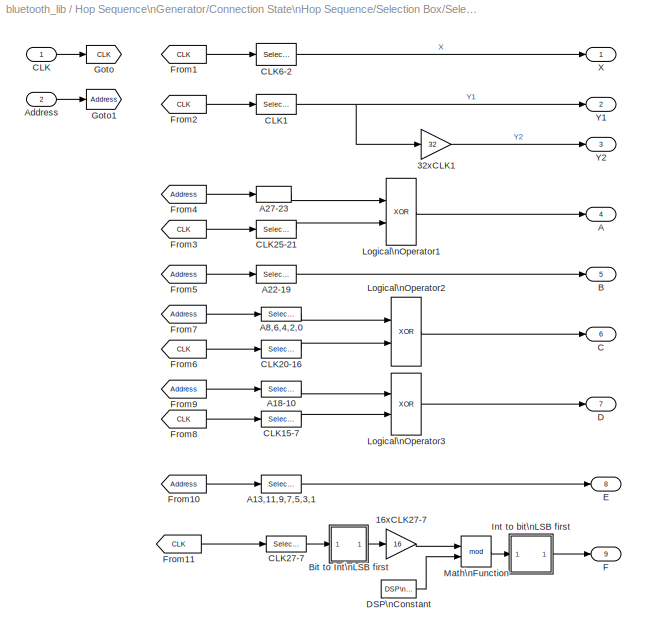
BLOCK [SubSystem] Hop Sequence\nGenerator/Connection State\nHop Sequence/Selection Box/Select\nSub-Control Words
  MinAlgLoopOccurrences = off
  Ports = [2, 9]
  PropExecContextAcrossSSBoundary = on
  RTWSystemCode = Auto
  TreatAsAtomicUnit = off
BLOCK [Gain] Hop Sequence\nGenerator/Connection State\nHop Sequence/Selection Box/Select\nSub-Control Words/16xCLK27-7
  Gain = 16
BLOCK [Gain] Hop Sequence\nGenerator/Connection State\nHop Sequence/Selection Box/Select\nSub-Control Words/32xCLK1
  Gain = 32
BLOCK [Outport] Hop Sequence\nGenerator/Connection State\nHop Sequence/Selection Box/Select\nSub-Control Words/A
  BusOutputAsStruct = off
  IconDisplay = Port number
  Port = 4
BLOCK [Selector] Hop Sequence\nGenerator/Connection State\nHop Sequence/Selection Box/Select\nSub-Control Words/A13,11,9,7,5,3,1
  Elements = [1 3 5 7 9 11 13] +1
  InputPortWidth = 28
  Ports = [1, 1]
BLOCK [Selector] Hop Sequence\nGenerator/Connection State\nHop Sequence/Selection Box/Select\nSub-Control Words/A18-10
  Elements = [10:18] +1
  InputPortWidth = 28
  Ports = [1, 1]
BLOCK [Selector] Hop Sequence\nGenerator/Connection State\nHop Sequence/Selection Box/Select\nSub-Control Words/A22-19
  Elements = [19:22] +1
  InputPortWidth = 28
  Ports = [1, 1]
BLOCK [Selector] Hop Sequence\nGenerator/Connection State\nHop Sequence/Selection Box/Select\nSub-Control Words/A27-23
  Elements = [23:27] +1
  InputPortWidth = 28
  Ports = [1, 1]
BLOCK [Selector] Hop Sequence\nGenerator/Connection State\nHop Sequence/Selection Box/Select\nSub-Control Words/A8,6,4,2,0
  Elements = [0 2 4 6 8] +1
  InputPortWidth = 28
  Ports = [1, 1]
BLOCK [Inport] Hop Sequence\nGenerator/Connection State\nHop Sequence/Selection Box/Select\nSub-Control Words/Address
  IconDisplay = Port number
  LatchInput = off
  Port = 2
BLOCK [Outport] Hop Sequence\nGenerator/Connection State\nHop Sequence/Selection Box/Select\nSub-Control Words/B
  BusOutputAsStruct = off
  IconDisplay = Port number
  Port = 5
BLOCK [SubSystem] Hop Sequence\nGenerator/Connection State\nHop Sequence/Selection Box/Select\nSub-Control Words/Bit to Int\nLSB first
  MaskDisplay = disp('Bit to Int\\n\nLSB first');
  MaskEnableString = on
  MaskIconFrame = on
  MaskIconOpaque = on
  MaskIconRotate = none
  MaskIconUnits = autoscale
  MaskPromptString = Number of bits
  MaskStyleString = edit
  MaskToolTipString = on
  MaskTunableValueString = on
  MaskValueString = 21
  MaskVariables = Numbits=@1;
  MaskVisibilityString = on
  MinAlgLoopOccurrences = off
  Ports = [1, 1]
  PropExecContextAcrossSSBoundary = on
  RTWSystemCode = Auto
  TreatAsAtomicUnit = off
BLOCK [Reference] Hop Sequence\nGenerator/Connection State\nHop Sequence/Selection Box/Select\nSub-Control Words/Bit to Int\nLSB first/Bit to Integer\nConverter5  REF=commutil2/Bit to Integer\nConverter
  Ports = [1, 1]
  SourceBlock = commutil2/Bit to Integer\nConverter
  SourceType = Bit to Integer Converter
  nbits = Numbits
BLOCK [Reference] Hop Sequence\nGenerator/Connection State\nHop Sequence/Selection Box/Select\nSub-Control Words/Bit to Int\nLSB first/Flip1  REF=dspindex/Flip
  Ports = [1, 1]
  SourceBlock = dspindex/Flip
  SourceType = Flip
  dim = Columns
BLOCK [Inport] Hop Sequence\nGenerator/Connection State\nHop Sequence/Selection Box/Select\nSub-Control Words/Bit to Int\nLSB first/In1
  IconDisplay = Port number
  LatchInput = off
BLOCK [Outport] Hop Sequence\nGenerator/Connection State\nHop Sequence/Selection Box/Select\nSub-Control Words/Bit to Int\nLSB first/Out1
  BusOutputAsStruct = off
  IconDisplay = Port number
BLOCK [Outport] Hop Sequence\nGenerator/Connection State\nHop Sequence/Selection Box/Select\nSub-Control Words/C
  BusOutputAsStruct = off
  IconDisplay = Port number
  Port = 6
BLOCK [Inport] Hop Sequence\nGenerator/Connection State\nHop Sequence/Selection Box/Select\nSub-Control Words/CLK
  IconDisplay = Port number
  LatchInput = off
BLOCK [Selector] Hop Sequence\nGenerator/Connection State\nHop Sequence/Selection Box/Select\nSub-Control Words/CLK1
  Elements = [1] +1
  InputPortWidth = 28
  Ports = [1, 1]
BLOCK [Selector] Hop Sequence\nGenerator/Connection State\nHop Sequence/Selection Box/Select\nSub-Control Words/CLK15-7
  Elements = [7:15] +1
  InputPortWidth = 28
  Ports = [1, 1]
BLOCK [Selector] Hop Sequence\nGenerator/Connection State\nHop Sequence/Selection Box/Select\nSub-Control Words/CLK20-16
  Elements = [16:20] +1
  InputPortWidth = 28
  Ports = [1, 1]
BLOCK [Selector] Hop Sequence\nGenerator/Connection State\nHop Sequence/Selection Box/Select\nSub-Control Words/CLK25-21
  Elements = [21:25] +1
  InputPortWidth = 28
  Ports = [1, 1]
BLOCK [Selector] Hop Sequence\nGenerator/Connection State\nHop Sequence/Selection Box/Select\nSub-Control Words/CLK27-7
  Elements = [7:27] +1
  InputPortWidth = 28
  Ports = [1, 1]
BLOCK [Selector] Hop Sequence\nGenerator/Connection State\nHop Sequence/Selection Box/Select\nSub-Control Words/CLK6-2
  Elements = [2:6] +1
  InputPortWidth = 28
  Ports = [1, 1]
BLOCK [Outport] Hop Sequence\nGenerator/Connection State\nHop Sequence/Selection Box/Select\nSub-Control Words/D
  BusOutputAsStruct = off
  IconDisplay = Port number
  Port = 7
BLOCK [Reference] Hop Sequence\nGenerator/Connection State\nHop Sequence/Selection Box/Select\nSub-Control Words/DSP\nConstant  REF=dspsrcs4/DSP\nConstant
  FramebasedOutput = off
  InterpretAs1D = off
  Ports = [0, 1]
  SampleMode = Discrete
  SourceBlock = dspsrcs4/DSP\nConstant
  SourceType = DSP Constant
  Ts = (1/1600)/2
  Value = 79
BLOCK [Outport] Hop Sequence\nGenerator/Connection State\nHop Sequence/Selection Box/Select\nSub-Control Words/E
  BusOutputAsStruct = off
  IconDisplay = Port number
  Port = 8
BLOCK [Outport] Hop Sequence\nGenerator/Connection State\nHop Sequence/Selection Box/Select\nSub-Control Words/F
  BusOutputAsStruct = off
  IconDisplay = Port number
  Port = 9
BLOCK [From] Hop Sequence\nGenerator/Connection State\nHop Sequence/Selection Box/Select\nSub-Control Words/From1
  CloseFcn = tagdialog Close
  DialogController = Simulink.DDGSource
  GotoTag = CLK
BLOCK [From] Hop Sequence\nGenerator/Connection State\nHop Sequence/Selection Box/Select\nSub-Control Words/From10
  CloseFcn = tagdialog Close
  DialogController = Simulink.DDGSource
  GotoTag = Address
BLOCK [From] Hop Sequence\nGenerator/Connection State\nHop Sequence/Selection Box/Select\nSub-Control Words/From11
  CloseFcn = tagdialog Close
  DialogController = Simulink.DDGSource
  GotoTag = CLK
BLOCK [From] Hop Sequence\nGenerator/Connection State\nHop Sequence/Selection Box/Select\nSub-Control Words/From2
  CloseFcn = tagdialog Close
  DialogController = Simulink.DDGSource
  GotoTag = CLK
BLOCK [From] Hop Sequence\nGenerator/Connection State\nHop Sequence/Selection Box/Select\nSub-Control Words/From3
  CloseFcn = tagdialog Close
  DialogController = Simulink.DDGSource
  GotoTag = CLK
BLOCK [From] Hop Sequence\nGenerator/Connection State\nHop Sequence/Selection Box/Select\nSub-Control Words/From4
  CloseFcn = tagdialog Close
  DialogController = Simulink.DDGSource
  GotoTag = Address
BLOCK [From] Hop Sequence\nGenerator/Connection State\nHop Sequence/Selection Box/Select\nSub-Control Words/From5
  CloseFcn = tagdialog Close
  DialogController = Simulink.DDGSource
  GotoTag = Address
BLOCK [From] Hop Sequence\nGenerator/Connection State\nHop Sequence/Selection Box/Select\nSub-Control Words/From6
  CloseFcn = tagdialog Close
  DialogController = Simulink.DDGSource
  GotoTag = CLK
BLOCK [From] Hop Sequence\nGenerator/Connection State\nHop Sequence/Selection Box/Select\nSub-Control Words/From7
  CloseFcn = tagdialog Close
  DialogController = Simulink.DDGSource
  GotoTag = Address
BLOCK [From] Hop Sequence\nGenerator/Connection State\nHop Sequence/Selection Box/Select\nSub-Control Words/From8
  CloseFcn = tagdialog Close
  DialogController = Simulink.DDGSource
  GotoTag = CLK
BLOCK [From] Hop Sequence\nGenerator/Connection State\nHop Sequence/Selection Box/Select\nSub-Control Words/From9
  CloseFcn = tagdialog Close
  DialogController = Simulink.DDGSource
  GotoTag = Address
BLOCK [Goto] Hop Sequence\nGenerator/Connection State\nHop Sequence/Selection Box/Select\nSub-Control Words/Goto
  DialogController = Simulink.DDGSource
  GotoTag = CLK
  TagVisibility = local
BLOCK [Goto] Hop Sequence\nGenerator/Connection State\nHop Sequence/Selection Box/Select\nSub-Control Words/Goto1
  DialogController = Simulink.DDGSource
  GotoTag = Address
  TagVisibility = local
BLOCK [SubSystem] Hop Sequence\nGenerator/Connection State\nHop Sequence/Selection Box/Select\nSub-Control Words/Int to bit\nLSB first
  MaskDisplay = disp('Int to bit\\n\nLSB first');
  MaskEnableString = on
  MaskIconFrame = on
  MaskIconOpaque = on
  MaskIconRotate = none
  MaskIconUnits = autoscale
  MaskPromptString = Number of bits
  MaskStyleString = edit
  MaskToolTipString = on
  MaskTunableValueString = on
  MaskValueString = 7
  MaskVariables = Numbits=@1;
  MaskVisibilityString = on
  MinAlgLoopOccurrences = off
  Ports = [1, 1]
  PropExecContextAcrossSSBoundary = on
  RTWSystemCode = Auto
  TreatAsAtomicUnit = off
BLOCK [Reference] Hop Sequence\nGenerator/Connection State\nHop Sequence/Selection Box/Select\nSub-Control Words/Int to bit\nLSB first/Flip  REF=dspindex/Flip
  Ports = [1, 1]
  SourceBlock = dspindex/Flip
  SourceType = Flip
  dim = Columns
BLOCK [Inport] Hop Sequence\nGenerator/Connection State\nHop Sequence/Selection Box/Select\nSub-Control Words/Int to bit\nLSB first/In1
  IconDisplay = Port number
  LatchInput = off
BLOCK [Reference] Hop Sequence\nGenerator/Connection State\nHop Sequence/Selection Box/Select\nSub-Control Words/Int to bit\nLSB first/Integer to Bit\nConverter3  REF=commutil2/Integer to Bit\nConverter
  Ports = [1, 1]
  SourceBlock = commutil2/Integer to Bit\nConverter
  SourceType = Integer to Bit Converter
  nbits = Numbits
BLOCK [Outport] Hop Sequence\nGenerator/Connection State\nHop Sequence/Selection Box/Select\nSub-Control Words/Int to bit\nLSB first/Out1
  BusOutputAsStruct = off
  IconDisplay = Port number
BLOCK [Logic] Hop Sequence\nGenerator/Connection State\nHop Sequence/Selection Box/Select\nSub-Control Words/Logical\nOperator1
  Operator = XOR
  Ports = [2, 1]
BLOCK [Logic] Hop Sequence\nGenerator/Connection State\nHop Sequence/Selection Box/Select\nSub-Control Words/Logical\nOperator2
  Operator = XOR
  Ports = [2, 1]
BLOCK [Logic] Hop Sequence\nGenerator/Connection State\nHop Sequence/Selection Box/Select\nSub-Control Words/Logical\nOperator3
  Operator = XOR
  Ports = [2, 1]
BLOCK [Math] Hop Sequence\nGenerator/Connection State\nHop Sequence/Selection Box/Select\nSub-Control Words/Math\nFunction
  Operator = mod
  Ports = [2, 1]
BLOCK [Outport] Hop Sequence\nGenerator/Connection State\nHop Sequence/Selection Box/Select\nSub-Control Words/X
  BusOutputAsStruct = off
  IconDisplay = Port number
BLOCK [Outport] Hop Sequence\nGenerator/Connection State\nHop Sequence/Selection Box/Select\nSub-Control Words/Y1
  BusOutputAsStruct = off
  IconDisplay = Port number
  Port = 2
BLOCK [Outport] Hop Sequence\nGenerator/Connection State\nHop Sequence/Selection Box/Select\nSub-Control Words/Y2
  BusOutputAsStruct = off
  IconDisplay = Port number
  Port = 3
BLOCK [SubSystem] Hop Sequence\nGenerator/Connection State\nHop Sequence/Selection Box/XOR 4 LSBs
  MinAlgLoopOccurrences = off
  Ports = [2, 1]
  PropExecContextAcrossSSBoundary = on
  RTWSystemCode = Auto
  TreatAsAtomicUnit = off
BLOCK [Inport] Hop Sequence\nGenerator/Connection State\nHop Sequence/Selection Box/XOR 4 LSBs/B
  IconDisplay = Port number
  LatchInput = off
BLOCK [Logic] Hop Sequence\nGenerator/Connection State\nHop Sequence/Selection Box/XOR 4 LSBs/Logical\nOperator2
  Operator = XOR
  Ports = [2, 1]
BLOCK [Mux] Hop Sequence\nGenerator/Connection State\nHop Sequence/Selection Box/XOR 4 LSBs/Mux
  DisplayOption = bar
  Inputs = 2
  Ports = [2, 1]
BLOCK [Outport] Hop Sequence\nGenerator/Connection State\nHop Sequence/Selection Box/XOR 4 LSBs/Z
  BusOutputAsStruct = off
  IconDisplay = Port number
BLOCK [Inport] Hop Sequence\nGenerator/Connection State\nHop Sequence/Selection Box/XOR 4 LSBs/Z'
  IconDisplay = Port number
  LatchInput = off
  Port = 2
BLOCK [Selector] Hop Sequence\nGenerator/Connection State\nHop Sequence/Selection Box/XOR 4 LSBs/Z'3-0
  Elements = [0:3] +1
  InputPortWidth = 5
  Ports = [1, 1]
BLOCK [Selector] Hop Sequence\nGenerator/Connection State\nHop Sequence/Selection Box/XOR 4 LSBs/Z'4
  Elements = 4 +1
  InputPortWidth = 5
  Ports = [1, 1]
BLOCK [Math] Hop Sequence\nGenerator/Connection State\nHop Sequence/Take 28 MSBs
  Operator = rem
  Ports = [2, 1]
BLOCK [Inport] Hop Sequence\nGenerator/Connection State\nHop Sequence/ULAP
  IconDisplay = Port number
  LatchInput = off
  Port = 2
BLOCK [Constant] Hop Sequence\nGenerator/Constant
  Value = Hop_Mode
BLOCK [Fcn] Hop Sequence\nGenerator/Fcn
  Expr = u==1
BLOCK [Fcn] Hop Sequence\nGenerator/Fcn1
  Expr = u==2
BLOCK [Fcn] Hop Sequence\nGenerator/Fcn2
  Expr = u==3
BLOCK [SubSystem] Hop Sequence\nGenerator/Fixed Frequency
  MinAlgLoopOccurrences = off
  Ports = [0, 1, 1]
  PropExecContextAcrossSSBoundary = on
  RTWSystemCode = Auto
  TreatAsAtomicUnit = on
BLOCK [Reference] Hop Sequence\nGenerator/Fixed Frequency/A fixed hop\nfrequency  REF=dspsrcs4/DSP\nConstant
  FramebasedOutput = off
  InterpretAs1D = on
  Ports = [0, 1]
  SampleMode = Discrete
  ShowPortLabels = on
  SourceBlock = dspsrcs4/DSP\nConstant
  SourceType = DSP Constant
  Ts = (1/1600)/2
  Value = fixed_hop_freq
  additionalParams = off
  allowOverrides = on
  continuousOutput = Sample-based
  dataType = Inherit from 'Constant value'
  discreteOutput = Sample-based (interpret vectors as 1-D)
  fracBitsMode = Best precision
  framePeriod = (1/1600)/2
  isSigned = on
  numFracBits = 15
  sampTime = (1/1600)/2
  udDataType = sfix(16)
  wordLen = 16
BLOCK [EnablePort] Hop Sequence\nGenerator/Fixed Frequency/Enable
  Ports = []
BLOCK [Outport] Hop Sequence\nGenerator/Fixed Frequency/Out1
  BusOutputAsStruct = off
  IconDisplay = Port number
  InitialOutput = fixed_hop_freq
BLOCK [Outport] Hop Sequence\nGenerator/Hop
  BusOutputAsStruct = off
  IconDisplay = Port number
BLOCK [Merge] Hop Sequence\nGenerator/Merge
  Inputs = 3
  Ports = [3, 1]
BLOCK [SubSystem] Hop Sequence\nGenerator/Random White\nHop Sequence
  MinAlgLoopOccurrences = off
  Ports = [0, 1, 1]
  PropExecContextAcrossSSBoundary = on
  RTWSystemCode = Auto
  TreatAsAtomicUnit = on
BLOCK [EnablePort] Hop Sequence\nGenerator/Random White\nHop Sequence/Enable
  Ports = []
BLOCK [SubSystem] Hop Sequence\nGenerator/Random White\nHop Sequence/Frequency\nhopping code\n1//1600 sec\n(page 127)
  MaskCallbackString = |||commblkrandintsrc2(gcb,'cbFrameBased');||commblkrandintsrc2(gcb,'cbOrient');
  MaskDescription = Generate integers randomly distributed in range [0, M-1], where M is the M-ary number.
  MaskDisplay = disp('Random int')
  MaskEnableString = on,on,on,on,off,on
  MaskHelp = helpview(commbhelp)
  MaskIconFrame = on
  MaskIconOpaque = on
  MaskIconRotate = none
  MaskIconUnits = autoscale
  MaskInitialization = if (frameBased & sampPerFrame > 1), dsp_sampFrame = sampPerFrame;\nelse dsp_sampFrame = 1; end\neStr=commblkrandintsrc2(gcb,'init');\nif(eStr.ecode==1)\n    error(eStr.emsg);\nend
  MaskPromptString = M-ary number:|Initial seed:|Sample time:|Frame-based outputs|Samples per frame:|Interpret vector parameters as 1-D
  MaskSelfModifiable = on
  MaskStyleString = edit,edit,edit,checkbox,edit,checkbox
  MaskTabNameString = ,,,,,
  MaskToolTipString = on,on,on,on,on,on
  MaskTunableValueString = on,on,on,on,on,on
  MaskType = Random-Integer Generator
  MaskValueString = 79|hop_seed|(1/1600)/2|off|1|off
  MaskVarAliasString = ,,,,,
  MaskVariables = mul=@1;seed=@2;Ts=@3;frameBased=@4;sampPerFrame=@5;orient=@6;
  MaskVisibilityString = on,on,on,on,on,on
  MinAlgLoopOccurrences = off
  Ports = [0, 1]
  PropExecContextAcrossSSBoundary = on
  RTWSystemCode = Auto
  TreatAsAtomicUnit = off
BLOCK [Reference] Hop Sequence\nGenerator/Random White\nHop Sequence/Frequency\nhopping code\n1//1600 sec\n(page 127)/Frame Status Conversion  REF=dspsigattribs/Frame Status\nConversion
  Ports = [1, 1]
  SourceBlock = dspsigattribs/Frame Status\nConversion
  SourceType = Frame Status Conversion
  growRefPort = off
  outframe = Sample-based
BLOCK [Reference] Hop Sequence\nGenerator/Random White\nHop Sequence/Frequency\nhopping code\n1//1600 sec\n(page 127)/Random Source  REF=dspsrcs4/Random\nSource
  Diagnostics = AllowInheritedTsInSrc
  Inherit = off
  Max = mul-1
  Mean = 0
  Min = -1+eps
  OutComplex = Real
  Ports = [0, 1]
  RepMode = Specify seed
  SampFrame = dsp_sampFrame
  SampMode = Discrete
  SampTime = Ts
  Seed = seed
  SourceBlock = dspsrcs4/Random\nSource
  SourceType = Random Source
  SrcType = Uniform
  Var = 1
BLOCK [Reference] Hop Sequence\nGenerator/Random White\nHop Sequence/Frequency\nhopping code\n1//1600 sec\n(page 127)/Reshape  REF=simulink3/Signals\n& Systems/Reshape
  OutputDimensionality = 1-D array
  OutputDimensions = [sampPerFrame,max([length(mul), length(seed)])]
  Ports = [1, 1]
  SourceBlock = simulink3/Signals\n& Systems/Reshape
  SourceType = Reshape
BLOCK [Rounding] Hop Sequence\nGenerator/Random White\nHop Sequence/Frequency\nhopping code\n1//1600 sec\n(page 127)/Rounding\nFunction
  Operator = ceil
BLOCK [Outport] Hop Sequence\nGenerator/Random White\nHop Sequence/Frequency\nhopping code\n1//1600 sec\n(page 127)/out_1
  BusOutputAsStruct = off
  IconDisplay = Port number
  InitialOutput = 0
BLOCK [Outport] Hop Sequence\nGenerator/Random White\nHop Sequence/Out1
  BusOutputAsStruct = off
  IconDisplay = Port number
BLOCK [Inport] Hop Sequence\nGenerator/ULAP
  IconDisplay = Port number
  LatchInput = off
  Port = 2
BLOCK [SubSystem] Permute bits
  MaskCallbackString = ||
  MaskDisplay = disp(['P' num2str(P(1)) ': {Z' num2str(First(1)) ',Z' num2str(First(2)) '}\\n'  'P' num2str(P(2)) ': {Z' num2str(Second(1)) ',Z' num2str(Second(2)) '}'])
  MaskEnableString = on,on,on
  MaskIconFrame = on
  MaskIconOpaque = on
  MaskIconRotate = none
  MaskIconUnits = autoscale
  MaskPromptString = P bit pair|Pair of bits that first P bit switches|Pair of bits that second P bit switches
  MaskStyleString = edit,edit,edit
  MaskTabNameString = ,,
  MaskToolTipString = on,on,on
  MaskTunableValueString = on,on,on
  MaskValueString = [13 12]|[1 2]|[0 3]
  MaskVarAliasString = ,,
  MaskVariables = P=@1;First=@2;Second=@3;
  MaskVisibilityString = on,on,on
  MinAlgLoopOccurrences = off
  Ports = [2, 1]
  PropExecContextAcrossSSBoundary = on
  RTWSystemCode = Auto
  TreatAsAtomicUnit = off
BLOCK [Assignment] Permute bits/Assignment
  Elements = [First(1) First(2)] +1
  Ports = [2, 1]
BLOCK [Assignment] Permute bits/Assignment1
  Elements = [Second(1) Second(2)] +1
  Ports = [2, 1]
BLOCK [SubSystem] Permute bits/Butterfly
  MinAlgLoopOccurrences = off
  Ports = [3, 2]
  PropExecContextAcrossSSBoundary = on
  RTWSystemCode = Auto
  TreatAsAtomicUnit = off
BLOCK [Inport] Permute bits/Butterfly/In1
  IconDisplay = Port number
  LatchInput = off
BLOCK [Inport] Permute bits/Butterfly/In2
  IconDisplay = Port number
  LatchInput = off
  Port = 2
BLOCK [Inport] Permute bits/Butterfly/In3
  IconDisplay = Port number
  LatchInput = off
  Port = 3
BLOCK [Logic] Permute bits/Butterfly/Logical\nOperator1
  Operator = NOT
  Ports = [1, 1]
BLOCK [Outport] Permute bits/Butterfly/Out1
  BusOutputAsStruct = off
  IconDisplay = Port number
BLOCK [Outport] Permute bits/Butterfly/Out2
  BusOutputAsStruct = off
  IconDisplay = Port number
  Port = 2
BLOCK [Switch] Permute bits/Butterfly/Switch1
  Threshold = eps
BLOCK [Switch] Permute bits/Butterfly/Switch2
  Threshold = eps
BLOCK [SubSystem] Permute bits/Butterfly1
  MinAlgLoopOccurrences = off
  Ports = [3, 2]
  PropExecContextAcrossSSBoundary = on
  RTWSystemCode = Auto
  TreatAsAtomicUnit = off
BLOCK [Inport] Permute bits/Butterfly1/In1
  IconDisplay = Port number
  LatchInput = off
BLOCK [Inport] Permute bits/Butterfly1/In2
  IconDisplay = Port number
  LatchInput = off
  Port = 2
BLOCK [Inport] Permute bits/Butterfly1/In3
  IconDisplay = Port number
  LatchInput = off
  Port = 3
BLOCK [Logic] Permute bits/Butterfly1/Logical\nOperator1
  Operator = NOT
  Ports = [1, 1]
BLOCK [Outport] Permute bits/Butterfly1/Out1
  BusOutputAsStruct = off
  IconDisplay = Port number
BLOCK [Outport] Permute bits/Butterfly1/Out2
  BusOutputAsStruct = off
  IconDisplay = Port number
  Port = 2
BLOCK [Switch] Permute bits/Butterfly1/Switch1
  Threshold = eps
BLOCK [Switch] Permute bits/Butterfly1/Switch2
  Threshold = eps
BLOCK [Demux] Permute bits/Demux
  Outputs = 2
  Ports = [1, 2]
BLOCK [Demux] Permute bits/Demux1
  Outputs = 2
  Ports = [1, 2]
BLOCK [Inport] Permute bits/In Z4-0
  IconDisplay = Port number
  LatchInput = off
  Port = 2
BLOCK [Mux] Permute bits/Mux
  DisplayOption = bar
  Inputs = 2
  Ports = [2, 1]
BLOCK [Mux] Permute bits/Mux1
  DisplayOption = bar
  Inputs = 2
  Ports = [2, 1]
BLOCK [Outport] Permute bits/Out Z4-0
  BusOutputAsStruct = off
  IconDisplay = Port number
BLOCK [Inport] Permute bits/P
  IconDisplay = Port number
  LatchInput = off
BLOCK [Selector] Permute bits/Selector
  Elements = [First(1) First(2)] +1
  InputPortWidth = 5
  Ports = [1, 1]
BLOCK [Selector] Permute bits/Selector1
  Elements = [Second(1) Second(2)] +1
  InputPortWidth = 5
  Ports = [1, 1]
BLOCK [Selector] Permute bits/Selector2
  Elements = [P(1)] +1
  InputPortWidth = 14
  Ports = [1, 1]
BLOCK [Selector] Permute bits/Selector3
  Elements = [P(2)] +1
  InputPortWidth = 14
  Ports = [1, 1]
LINE 802.11b\nTransmitter/1//100packet\nresolution:1 -> 802.11b\nTransmitter/Enable control:1
LINE 802.11b\nTransmitter/22MHz noise in\n100MHz signal/20MHz\nwhite noise:1 -> 802.11b\nTransmitter/22MHz noise in\n100MHz signal/Upsample\nto 100MHz:1
LINE 802.11b\nTransmitter/22MHz noise in\n100MHz signal/DSP\nConstant:1 -> 802.11b\nTransmitter/22MHz noise in\n100MHz signal/Frame Status\nConversion:1
LINE 802.11b\nTransmitter/22MHz noise in\n100MHz signal/Digital\nFilter Design2:1 -> 802.11b\nTransmitter/22MHz noise in\n100MHz signal/Set power:1
LINE 802.11b\nTransmitter/22MHz noise in\n100MHz signal/Digital\nFilter Design:1 -> 802.11b\nTransmitter/22MHz noise in\n100MHz signal/Digital\nFilter Design2:1
LINE 802.11b\nTransmitter/22MHz noise in\n100MHz signal/Frame Status\nConversion1:1 -> 802.11b\nTransmitter/22MHz noise in\n100MHz signal/Tx power:1
LINE 802.11b\nTransmitter/22MHz noise in\n100MHz signal/Frame Status\nConversion:1 -> 802.11b\nTransmitter/22MHz noise in\n100MHz signal/Mixed to \none of bluetooth\nfrequencies\n:1
LINE 802.11b\nTransmitter/22MHz noise in\n100MHz signal/Gain:1 -> 802.11b\nTransmitter/22MHz noise in\n100MHz signal/Digital\nFilter Design:1
LINE 802.11b\nTransmitter/22MHz noise in\n100MHz signal/Mix:1 -> 802.11b\nTransmitter/22MHz noise in\n100MHz signal/Out:1
LINE 802.11b\nTransmitter/22MHz noise in\n100MHz signal/Mixed to \none of bluetooth\nfrequencies\n:1 -> 802.11b\nTransmitter/22MHz noise in\n100MHz signal/Mix:2
NET 802.11b\nTransmitter/22MHz noise in\n100MHz signal/Set power:1 -> 802.11b\nTransmitter/22MHz noise in\n100MHz signal/Mix:1, 802.11b\nTransmitter/22MHz noise in\n100MHz signal/Variance:1
LINE 802.11b\nTransmitter/22MHz noise in\n100MHz signal/Upsample\nto 100MHz:1 -> 802.11b\nTransmitter/22MHz noise in\n100MHz signal/Gain:1
LINE 802.11b\nTransmitter/22MHz noise in\n100MHz signal/Variance:1 -> 802.11b\nTransmitter/22MHz noise in\n100MHz signal/Frame Status\nConversion1:1
LINE 802.11b\nTransmitter/22MHz noise in\n100MHz signal:1 -> 802.11b\nTransmitter/Buffer to same\nframe-size\nas channel:1
LINE 802.11b\nTransmitter/Buffer to same\nframe-size\nas channel:1 -> 802.11b\nTransmitter/Out:1
LINE 802.11b\nTransmitter/Enable control/If rate set to 999\nturn-on always:1 -> 802.11b\nTransmitter/Enable control/Logical\nOperator1:2
LINE 802.11b\nTransmitter/Enable control/In:1 -> 802.11b\nTransmitter/Enable control/Logical\nOperator:1
LINE 802.11b\nTransmitter/Enable control/Logical\nOperator1:1 -> 802.11b\nTransmitter/Enable control/Logical\nOperator2:2
LINE 802.11b\nTransmitter/Enable control/Logical\nOperator2:1 -> 802.11b\nTransmitter/Enable control/Out:1
LINE 802.11b\nTransmitter/Enable control/Logical\nOperator:1 -> 802.11b\nTransmitter/Enable control/Logical\nOperator2:1
LINE 802.11b\nTransmitter/Enable control/Mode1:1 -> 802.11b\nTransmitter/Enable control/If rate set to 999\nturn-on always:1
LINE 802.11b\nTransmitter/Enable control/Mode2:1 -> 802.11b\nTransmitter/Enable control/If rate set to 999\nturn-on always:2
NET 802.11b\nTransmitter/Enable control/Mode:1 -> 802.11b\nTransmitter/Enable control/Logical\nOperator1:1, 802.11b\nTransmitter/Enable control/Logical\nOperator:2
LINE 802.11b\nTransmitter/Enable control:1 -> 802.11b\nTransmitter/22MHz noise in\n100MHz signal:enable
LINE 802.11b\nTransmitter/Square pulse with\nPoisson process/S-Function1:1 -> 802.11b\nTransmitter/Square pulse with\nPoisson process/hit:1
NET 802.11b\nTransmitter/Square pulse with\nPoisson process:1 -> 802.11b\nTransmitter/1//100packet\nresolution:1, 802.11b\nTransmitter/Goto4:1
LINE Bluetooth\nClock/DSP\nConstant:1 -> Bluetooth\nClock/Sum:1
NET Bluetooth\nClock/Delay:1 -> Bluetooth\nClock/CLK:1, Bluetooth\nClock/Sum:2
LINE Bluetooth\nClock/Sum:1 -> Bluetooth\nClock/Delay:1
LINE Hop Sequence\nGenerator/CLK:1 -> Hop Sequence\nGenerator/Connection State\nHop Sequence:1
LINE Hop Sequence\nGenerator/Connection State\nHop Sequence/CLK:1 -> Hop Sequence\nGenerator/Connection State\nHop Sequence/Int to bit\nLSB first:1
LINE Hop Sequence\nGenerator/Connection State\nHop Sequence/DSP\nConstant:1 -> Hop Sequence\nGenerator/Connection State\nHop Sequence/Take 28 MSBs:2
LINE Hop Sequence\nGenerator/Connection State\nHop Sequence/Int to bit\nLSB first/Flip:1 -> Hop Sequence\nGenerator/Connection State\nHop Sequence/Int to bit\nLSB first/Out1:1
LINE Hop Sequence\nGenerator/Connection State\nHop Sequence/Int to bit\nLSB first/In1:1 -> Hop Sequence\nGenerator/Connection State\nHop Sequence/Int to bit\nLSB first/Integer to Bit\nConverter3:1
LINE Hop Sequence\nGenerator/Connection State\nHop Sequence/Int to bit\nLSB first/Integer to Bit\nConverter3:1 -> Hop Sequence\nGenerator/Connection State\nHop Sequence/Int to bit\nLSB first/Flip:1
LINE Hop Sequence\nGenerator/Connection State\nHop Sequence/Int to bit\nLSB first1/Flip:1 -> Hop Sequence\nGenerator/Connection State\nHop Sequence/Int to bit\nLSB first1/Out1:1
LINE Hop Sequence\nGenerator/Connection State\nHop Sequence/Int to bit\nLSB first1/In1:1 -> Hop Sequence\nGenerator/Connection State\nHop Sequence/Int to bit\nLSB first1/Integer to Bit\nConverter3:1
LINE Hop Sequence\nGenerator/Connection State\nHop Sequence/Int to bit\nLSB first1/Integer to Bit\nConverter3:1 -> Hop Sequence\nGenerator/Connection State\nHop Sequence/Int to bit\nLSB first1/Flip:1
LINE Hop Sequence\nGenerator/Connection State\nHop Sequence/Int to bit\nLSB first1:1 -> Hop Sequence\nGenerator/Connection State\nHop Sequence/LAP+ 4LSB UAP:1
LINE Hop Sequence\nGenerator/Connection State\nHop Sequence/Int to bit\nLSB first:1 -> Hop Sequence\nGenerator/Connection State\nHop Sequence/Selection Box:1
LINE Hop Sequence\nGenerator/Connection State\nHop Sequence/LAP+ 4LSB UAP:1 -> Hop Sequence\nGenerator/Connection State\nHop Sequence/Selection Box:2
LINE Hop Sequence\nGenerator/Connection State\nHop Sequence/Selection Box/ADD\nmod 32/A:1 -> Hop Sequence\nGenerator/Connection State\nHop Sequence/Selection Box/ADD\nmod 32/Bit to Int\nLSB first1:1
LINE Hop Sequence\nGenerator/Connection State\nHop Sequence/Selection Box/ADD\nmod 32/Bit to Int\nLSB first1/Bit to Integer\nConverter5:1 -> Hop Sequence\nGenerator/Connection State\nHop Sequence/Selection Box/ADD\nmod 32/Bit to Int\nLSB first1/Out1:1
LINE Hop Sequence\nGenerator/Connection State\nHop Sequence/Selection Box/ADD\nmod 32/Bit to Int\nLSB first1/Flip1:1 -> Hop Sequence\nGenerator/Connection State\nHop Sequence/Selection Box/ADD\nmod 32/Bit to Int\nLSB first1/Bit to Integer\nConverter5:1
LINE Hop Sequence\nGenerator/Connection State\nHop Sequence/Selection Box/ADD\nmod 32/Bit to Int\nLSB first1/In1:1 -> Hop Sequence\nGenerator/Connection State\nHop Sequence/Selection Box/ADD\nmod 32/Bit to Int\nLSB first1/Flip1:1
LINE Hop Sequence\nGenerator/Connection State\nHop Sequence/Selection Box/ADD\nmod 32/Bit to Int\nLSB first1:1 -> Hop Sequence\nGenerator/Connection State\nHop Sequence/Selection Box/ADD\nmod 32/Sum:1
LINE Hop Sequence\nGenerator/Connection State\nHop Sequence/Selection Box/ADD\nmod 32/Bit to Int\nLSB first2/Bit to Integer\nConverter5:1 -> Hop Sequence\nGenerator/Connection State\nHop Sequence/Selection Box/ADD\nmod 32/Bit to Int\nLSB first2/Out1:1
LINE Hop Sequence\nGenerator/Connection State\nHop Sequence/Selection Box/ADD\nmod 32/Bit to Int\nLSB first2/Flip1:1 -> Hop Sequence\nGenerator/Connection State\nHop Sequence/Selection Box/ADD\nmod 32/Bit to Int\nLSB first2/Bit to Integer\nConverter5:1
LINE Hop Sequence\nGenerator/Connection State\nHop Sequence/Selection Box/ADD\nmod 32/Bit to Int\nLSB first2/In1:1 -> Hop Sequence\nGenerator/Connection State\nHop Sequence/Selection Box/ADD\nmod 32/Bit to Int\nLSB first2/Flip1:1
LINE Hop Sequence\nGenerator/Connection State\nHop Sequence/Selection Box/ADD\nmod 32/Bit to Int\nLSB first2:1 -> Hop Sequence\nGenerator/Connection State\nHop Sequence/Selection Box/ADD\nmod 32/Sum:2
LINE Hop Sequence\nGenerator/Connection State\nHop Sequence/Selection Box/ADD\nmod 32/DSP\nConstant1:1 -> Hop Sequence\nGenerator/Connection State\nHop Sequence/Selection Box/ADD\nmod 32/Math\nFunction1:2
LINE Hop Sequence\nGenerator/Connection State\nHop Sequence/Selection Box/ADD\nmod 32/Int to bit\nLSB first/Flip:1 -> Hop Sequence\nGenerator/Connection State\nHop Sequence/Selection Box/ADD\nmod 32/Int to bit\nLSB first/Out1:1
LINE Hop Sequence\nGenerator/Connection State\nHop Sequence/Selection Box/ADD\nmod 32/Int to bit\nLSB first/In1:1 -> Hop Sequence\nGenerator/Connection State\nHop Sequence/Selection Box/ADD\nmod 32/Int to bit\nLSB first/Integer to Bit\nConverter3:1
LINE Hop Sequence\nGenerator/Connection State\nHop Sequence/Selection Box/ADD\nmod 32/Int to bit\nLSB first/Integer to Bit\nConverter3:1 -> Hop Sequence\nGenerator/Connection State\nHop Sequence/Selection Box/ADD\nmod 32/Int to bit\nLSB first/Flip:1
LINE Hop Sequence\nGenerator/Connection State\nHop Sequence/Selection Box/ADD\nmod 32/Int to bit\nLSB first:1 -> Hop Sequence\nGenerator/Connection State\nHop Sequence/Selection Box/ADD\nmod 32/Out1:1
LINE Hop Sequence\nGenerator/Connection State\nHop Sequence/Selection Box/ADD\nmod 32/Math\nFunction1:1 -> Hop Sequence\nGenerator/Connection State\nHop Sequence/Selection Box/ADD\nmod 32/Int to bit\nLSB first:1
LINE Hop Sequence\nGenerator/Connection State\nHop Sequence/Selection Box/ADD\nmod 32/Sum:1 -> Hop Sequence\nGenerator/Connection State\nHop Sequence/Selection Box/ADD\nmod 32/Math\nFunction1:1
LINE Hop Sequence\nGenerator/Connection State\nHop Sequence/Selection Box/ADD\nmod 32/X:1 -> Hop Sequence\nGenerator/Connection State\nHop Sequence/Selection Box/ADD\nmod 32/Bit to Int\nLSB first2:1
LINE Hop Sequence\nGenerator/Connection State\nHop Sequence/Selection Box/ADD\nmod 32:1 -> Hop Sequence\nGenerator/Connection State\nHop Sequence/Selection Box/XOR 4 LSBs:2
LINE Hop Sequence\nGenerator/Connection State\nHop Sequence/Selection Box/ADD\nmod 79/Bit to Int\nLSB first3/Bit to Integer\nConverter5:1 -> Hop Sequence\nGenerator/Connection State\nHop Sequence/Selection Box/ADD\nmod 79/Bit to Int\nLSB first3/Out1:1
LINE Hop Sequence\nGenerator/Connection State\nHop Sequence/Selection Box/ADD\nmod 79/Bit to Int\nLSB first3/Flip1:1 -> Hop Sequence\nGenerator/Connection State\nHop Sequence/Selection Box/ADD\nmod 79/Bit to Int\nLSB first3/Bit to Integer\nConverter5:1
LINE Hop Sequence\nGenerator/Connection State\nHop Sequence/Selection Box/ADD\nmod 79/Bit to Int\nLSB first3/In1:1 -> Hop Sequence\nGenerator/Connection State\nHop Sequence/Selection Box/ADD\nmod 79/Bit to Int\nLSB first3/Flip1:1
LINE Hop Sequence\nGenerator/Connection State\nHop Sequence/Selection Box/ADD\nmod 79/Bit to Int\nLSB first3:1 -> Hop Sequence\nGenerator/Connection State\nHop Sequence/Selection Box/ADD\nmod 79/Sum1:3
LINE Hop Sequence\nGenerator/Connection State\nHop Sequence/Selection Box/ADD\nmod 79/Bit to Int\nLSB first4/Bit to Integer\nConverter5:1 -> Hop Sequence\nGenerator/Connection State\nHop Sequence/Selection Box/ADD\nmod 79/Bit to Int\nLSB first4/Out1:1
LINE Hop Sequence\nGenerator/Connection State\nHop Sequence/Selection Box/ADD\nmod 79/Bit to Int\nLSB first4/Flip1:1 -> Hop Sequence\nGenerator/Connection State\nHop Sequence/Selection Box/ADD\nmod 79/Bit to Int\nLSB first4/Bit to Integer\nConverter5:1
LINE Hop Sequence\nGenerator/Connection State\nHop Sequence/Selection Box/ADD\nmod 79/Bit to Int\nLSB first4/In1:1 -> Hop Sequence\nGenerator/Connection State\nHop Sequence/Selection Box/ADD\nmod 79/Bit to Int\nLSB first4/Flip1:1
LINE Hop Sequence\nGenerator/Connection State\nHop Sequence/Selection Box/ADD\nmod 79/Bit to Int\nLSB first4:1 -> Hop Sequence\nGenerator/Connection State\nHop Sequence/Selection Box/ADD\nmod 79/Sum1:2
LINE Hop Sequence\nGenerator/Connection State\nHop Sequence/Selection Box/ADD\nmod 79/Bit to Int\nLSB first5/Bit to Integer\nConverter5:1 -> Hop Sequence\nGenerator/Connection State\nHop Sequence/Selection Box/ADD\nmod 79/Bit to Int\nLSB first5/Out1:1
LINE Hop Sequence\nGenerator/Connection State\nHop Sequence/Selection Box/ADD\nmod 79/Bit to Int\nLSB first5/Flip1:1 -> Hop Sequence\nGenerator/Connection State\nHop Sequence/Selection Box/ADD\nmod 79/Bit to Int\nLSB first5/Bit to Integer\nConverter5:1
LINE Hop Sequence\nGenerator/Connection State\nHop Sequence/Selection Box/ADD\nmod 79/Bit to Int\nLSB first5/In1:1 -> Hop Sequence\nGenerator/Connection State\nHop Sequence/Selection Box/ADD\nmod 79/Bit to Int\nLSB first5/Flip1:1
LINE Hop Sequence\nGenerator/Connection State\nHop Sequence/Selection Box/ADD\nmod 79/Bit to Int\nLSB first5:1 -> Hop Sequence\nGenerator/Connection State\nHop Sequence/Selection Box/ADD\nmod 79/Sum1:1
LINE Hop Sequence\nGenerator/Connection State\nHop Sequence/Selection Box/ADD\nmod 79/DSP\nConstant:1 -> Hop Sequence\nGenerator/Connection State\nHop Sequence/Selection Box/ADD\nmod 79/Math\nFunction:2
LINE Hop Sequence\nGenerator/Connection State\nHop Sequence/Selection Box/ADD\nmod 79/E:1 -> Hop Sequence\nGenerator/Connection State\nHop Sequence/Selection Box/ADD\nmod 79/Bit to Int\nLSB first4:1
LINE Hop Sequence\nGenerator/Connection State\nHop Sequence/Selection Box/ADD\nmod 79/F:1 -> Hop Sequence\nGenerator/Connection State\nHop Sequence/Selection Box/ADD\nmod 79/Bit to Int\nLSB first5:1
LINE Hop Sequence\nGenerator/Connection State\nHop Sequence/Selection Box/ADD\nmod 79/In:1 -> Hop Sequence\nGenerator/Connection State\nHop Sequence/Selection Box/ADD\nmod 79/Bit to Int\nLSB first3:1
LINE Hop Sequence\nGenerator/Connection State\nHop Sequence/Selection Box/ADD\nmod 79/Int to bit\nLSB first/Flip:1 -> Hop Sequence\nGenerator/Connection State\nHop Sequence/Selection Box/ADD\nmod 79/Int to bit\nLSB first/Out1:1
LINE Hop Sequence\nGenerator/Connection State\nHop Sequence/Selection Box/ADD\nmod 79/Int to bit\nLSB first/In1:1 -> Hop Sequence\nGenerator/Connection State\nHop Sequence/Selection Box/ADD\nmod 79/Int to bit\nLSB first/Integer to Bit\nConverter3:1
LINE Hop Sequence\nGenerator/Connection State\nHop Sequence/Selection Box/ADD\nmod 79/Int to bit\nLSB first/Integer to Bit\nConverter3:1 -> Hop Sequence\nGenerator/Connection State\nHop Sequence/Selection Box/ADD\nmod 79/Int to bit\nLSB first/Flip:1
LINE Hop Sequence\nGenerator/Connection State\nHop Sequence/Selection Box/ADD\nmod 79/Int to bit\nLSB first:1 -> Hop Sequence\nGenerator/Connection State\nHop Sequence/Selection Box/ADD\nmod 79/Out:1
LINE Hop Sequence\nGenerator/Connection State\nHop Sequence/Selection Box/ADD\nmod 79/Math\nFunction:1 -> Hop Sequence\nGenerator/Connection State\nHop Sequence/Selection Box/ADD\nmod 79/Int to bit\nLSB first:1
LINE Hop Sequence\nGenerator/Connection State\nHop Sequence/Selection Box/ADD\nmod 79/Sum1:1 -> Hop Sequence\nGenerator/Connection State\nHop Sequence/Selection Box/ADD\nmod 79/Math\nFunction:1
LINE Hop Sequence\nGenerator/Connection State\nHop Sequence/Selection Box/ADD\nmod 79/Y2:1 -> Hop Sequence\nGenerator/Connection State\nHop Sequence/Selection Box/ADD\nmod 79/Sum1:4
LINE Hop Sequence\nGenerator/Connection State\nHop Sequence/Selection Box/ADD\nmod 79:1 -> Hop Sequence\nGenerator/Connection State\nHop Sequence/Selection Box/Bit to Int\nLSB first3:1
LINE Hop Sequence\nGenerator/Connection State\nHop Sequence/Selection Box/Address:1 -> Hop Sequence\nGenerator/Connection State\nHop Sequence/Selection Box/Select\nSub-Control Words:2
LINE Hop Sequence\nGenerator/Connection State\nHop Sequence/Selection Box/Bit to Int\nLSB first3/Bit to Integer\nConverter5:1 -> Hop Sequence\nGenerator/Connection State\nHop Sequence/Selection Box/Bit to Int\nLSB first3/Out1:1
LINE Hop Sequence\nGenerator/Connection State\nHop Sequence/Selection Box/Bit to Int\nLSB first3/Flip1:1 -> Hop Sequence\nGenerator/Connection State\nHop Sequence/Selection Box/Bit to Int\nLSB first3/Bit to Integer\nConverter5:1
LINE Hop Sequence\nGenerator/Connection State\nHop Sequence/Selection Box/Bit to Int\nLSB first3/In1:1 -> Hop Sequence\nGenerator/Connection State\nHop Sequence/Selection Box/Bit to Int\nLSB first3/Flip1:1
LINE Hop Sequence\nGenerator/Connection State\nHop Sequence/Selection Box/Bit to Int\nLSB first3:1 -> Hop Sequence\nGenerator/Connection State\nHop Sequence/Selection Box/Look-Up\nTable:1
LINE Hop Sequence\nGenerator/Connection State\nHop Sequence/Selection Box/CLK:1 -> Hop Sequence\nGenerator/Connection State\nHop Sequence/Selection Box/Select\nSub-Control Words:1
LINE Hop Sequence\nGenerator/Connection State\nHop Sequence/Selection Box/From1:1 -> Hop Sequence\nGenerator/Connection State\nHop Sequence/Selection Box/ADD\nmod 32:1
LINE Hop Sequence\nGenerator/Connection State\nHop Sequence/Selection Box/From2:1 -> Hop Sequence\nGenerator/Connection State\nHop Sequence/Selection Box/XOR 4 LSBs:1
LINE Hop Sequence\nGenerator/Connection State\nHop Sequence/Selection Box/From3:1 -> Hop Sequence\nGenerator/Connection State\nHop Sequence/Selection Box/Logical\nOperator1:2
LINE Hop Sequence\nGenerator/Connection State\nHop Sequence/Selection Box/From4:1 -> Hop Sequence\nGenerator/Connection State\nHop Sequence/Selection Box/Permute:1
LINE Hop Sequence\nGenerator/Connection State\nHop Sequence/Selection Box/From5:1 -> Hop Sequence\nGenerator/Connection State\nHop Sequence/Selection Box/Logical\nOperator1:1
LINE Hop Sequence\nGenerator/Connection State\nHop Sequence/Selection Box/From6:1 -> Hop Sequence\nGenerator/Connection State\nHop Sequence/Selection Box/ADD\nmod 79:1
LINE Hop Sequence\nGenerator/Connection State\nHop Sequence/Selection Box/From7:1 -> Hop Sequence\nGenerator/Connection State\nHop Sequence/Selection Box/ADD\nmod 79:2
LINE Hop Sequence\nGenerator/Connection State\nHop Sequence/Selection Box/From8:1 -> Hop Sequence\nGenerator/Connection State\nHop Sequence/Selection Box/ADD\nmod 79:4
LINE Hop Sequence\nGenerator/Connection State\nHop Sequence/Selection Box/From:1 -> Hop Sequence\nGenerator/Connection State\nHop Sequence/Selection Box/ADD\nmod 32:2
LINE Hop Sequence\nGenerator/Connection State\nHop Sequence/Selection Box/Logical\nOperator1:1 -> Hop Sequence\nGenerator/Connection State\nHop Sequence/Selection Box/Permute:2
LINE Hop Sequence\nGenerator/Connection State\nHop Sequence/Selection Box/Look-Up\nTable:1 -> Hop Sequence\nGenerator/Connection State\nHop Sequence/Selection Box/Hop Frequency:1
LINE Hop Sequence\nGenerator/Connection State\nHop Sequence/Selection Box/Permute/From1:1 -> Hop Sequence\nGenerator/Connection State\nHop Sequence/Selection Box/Permute/Stage2:1
LINE Hop Sequence\nGenerator/Connection State\nHop Sequence/Selection Box/Permute/From2:1 -> Hop Sequence\nGenerator/Connection State\nHop Sequence/Selection Box/Permute/Stage3:1
LINE Hop Sequence\nGenerator/Connection State\nHop Sequence/Selection Box/Permute/From3:1 -> Hop Sequence\nGenerator/Connection State\nHop Sequence/Selection Box/Permute/Stage4:1
LINE Hop Sequence\nGenerator/Connection State\nHop Sequence/Selection Box/Permute/From4:1 -> Hop Sequence\nGenerator/Connection State\nHop Sequence/Selection Box/Permute/Stage5:1
LINE Hop Sequence\nGenerator/Connection State\nHop Sequence/Selection Box/Permute/From5:1 -> Hop Sequence\nGenerator/Connection State\nHop Sequence/Selection Box/Permute/Stage6:1
LINE Hop Sequence\nGenerator/Connection State\nHop Sequence/Selection Box/Permute/From6:1 -> Hop Sequence\nGenerator/Connection State\nHop Sequence/Selection Box/Permute/Stage7:1
LINE Hop Sequence\nGenerator/Connection State\nHop Sequence/Selection Box/Permute/From:1 -> Hop Sequence\nGenerator/Connection State\nHop Sequence/Selection Box/Permute/Stage1:1
LINE Hop Sequence\nGenerator/Connection State\nHop Sequence/Selection Box/Permute/Mux:1 -> Hop Sequence\nGenerator/Connection State\nHop Sequence/Selection Box/Permute/Goto:1
LINE Hop Sequence\nGenerator/Connection State\nHop Sequence/Selection Box/Permute/P0-8 = D0-8:1 -> Hop Sequence\nGenerator/Connection State\nHop Sequence/Selection Box/Permute/Mux:1
LINE Hop Sequence\nGenerator/Connection State\nHop Sequence/Selection Box/Permute/P13-9 = C XOR Y1:1 -> Hop Sequence\nGenerator/Connection State\nHop Sequence/Selection Box/Permute/Mux:2
LINE Hop Sequence\nGenerator/Connection State\nHop Sequence/Selection Box/Permute/Stage1:1 -> Hop Sequence\nGenerator/Connection State\nHop Sequence/Selection Box/Permute/Stage2:2
LINE Hop Sequence\nGenerator/Connection State\nHop Sequence/Selection Box/Permute/Stage2:1 -> Hop Sequence\nGenerator/Connection State\nHop Sequence/Selection Box/Permute/Stage3:2
LINE Hop Sequence\nGenerator/Connection State\nHop Sequence/Selection Box/Permute/Stage3:1 -> Hop Sequence\nGenerator/Connection State\nHop Sequence/Selection Box/Permute/Stage4:2
LINE Hop Sequence\nGenerator/Connection State\nHop Sequence/Selection Box/Permute/Stage4:1 -> Hop Sequence\nGenerator/Connection State\nHop Sequence/Selection Box/Permute/Stage5:2
LINE Hop Sequence\nGenerator/Connection State\nHop Sequence/Selection Box/Permute/Stage5:1 -> Hop Sequence\nGenerator/Connection State\nHop Sequence/Selection Box/Permute/Stage6:2
LINE Hop Sequence\nGenerator/Connection State\nHop Sequence/Selection Box/Permute/Stage6:1 -> Hop Sequence\nGenerator/Connection State\nHop Sequence/Selection Box/Permute/Stage7:2
LINE Hop Sequence\nGenerator/Connection State\nHop Sequence/Selection Box/Permute/Stage7:1 -> Hop Sequence\nGenerator/Connection State\nHop Sequence/Selection Box/Permute/Out:1
LINE Hop Sequence\nGenerator/Connection State\nHop Sequence/Selection Box/Permute/Z4-0:1 -> Hop Sequence\nGenerator/Connection State\nHop Sequence/Selection Box/Permute/Stage1:2
LINE Hop Sequence\nGenerator/Connection State\nHop Sequence/Selection Box/Permute:1 -> Hop Sequence\nGenerator/Connection State\nHop Sequence/Selection Box/ADD\nmod 79:3
LINE Hop Sequence\nGenerator/Connection State\nHop Sequence/Selection Box/Select\nSub-Control Words/16xCLK27-7:1 -> Hop Sequence\nGenerator/Connection State\nHop Sequence/Selection Box/Select\nSub-Control Words/Math\nFunction:1
LINE Hop Sequence\nGenerator/Connection State\nHop Sequence/Selection Box/Select\nSub-Control Words/32xCLK1:1 -> Hop Sequence\nGenerator/Connection State\nHop Sequence/Selection Box/Select\nSub-Control Words/Y2:1
LINE Hop Sequence\nGenerator/Connection State\nHop Sequence/Selection Box/Select\nSub-Control Words/A13,11,9,7,5,3,1:1 -> Hop Sequence\nGenerator/Connection State\nHop Sequence/Selection Box/Select\nSub-Control Words/E:1
LINE Hop Sequence\nGenerator/Connection State\nHop Sequence/Selection Box/Select\nSub-Control Words/A18-10:1 -> Hop Sequence\nGenerator/Connection State\nHop Sequence/Selection Box/Select\nSub-Control Words/Logical\nOperator3:1
LINE Hop Sequence\nGenerator/Connection State\nHop Sequence/Selection Box/Select\nSub-Control Words/A22-19:1 -> Hop Sequence\nGenerator/Connection State\nHop Sequence/Selection Box/Select\nSub-Control Words/B:1
LINE Hop Sequence\nGenerator/Connection State\nHop Sequence/Selection Box/Select\nSub-Control Words/A27-23:1 -> Hop Sequence\nGenerator/Connection State\nHop Sequence/Selection Box/Select\nSub-Control Words/Logical\nOperator1:1
LINE Hop Sequence\nGenerator/Connection State\nHop Sequence/Selection Box/Select\nSub-Control Words/A8,6,4,2,0:1 -> Hop Sequence\nGenerator/Connection State\nHop Sequence/Selection Box/Select\nSub-Control Words/Logical\nOperator2:1
LINE Hop Sequence\nGenerator/Connection State\nHop Sequence/Selection Box/Select\nSub-Control Words/Address:1 -> Hop Sequence\nGenerator/Connection State\nHop Sequence/Selection Box/Select\nSub-Control Words/Goto1:1
LINE Hop Sequence\nGenerator/Connection State\nHop Sequence/Selection Box/Select\nSub-Control Words/Bit to Int\nLSB first/Bit to Integer\nConverter5:1 -> Hop Sequence\nGenerator/Connection State\nHop Sequence/Selection Box/Select\nSub-Control Words/Bit to Int\nLSB first/Out1:1
LINE Hop Sequence\nGenerator/Connection State\nHop Sequence/Selection Box/Select\nSub-Control Words/Bit to Int\nLSB first/Flip1:1 -> Hop Sequence\nGenerator/Connection State\nHop Sequence/Selection Box/Select\nSub-Control Words/Bit to Int\nLSB first/Bit to Integer\nConverter5:1
LINE Hop Sequence\nGenerator/Connection State\nHop Sequence/Selection Box/Select\nSub-Control Words/Bit to Int\nLSB first/In1:1 -> Hop Sequence\nGenerator/Connection State\nHop Sequence/Selection Box/Select\nSub-Control Words/Bit to Int\nLSB first/Flip1:1
LINE Hop Sequence\nGenerator/Connection State\nHop Sequence/Selection Box/Select\nSub-Control Words/Bit to Int\nLSB first:1 -> Hop Sequence\nGenerator/Connection State\nHop Sequence/Selection Box/Select\nSub-Control Words/16xCLK27-7:1
LINE Hop Sequence\nGenerator/Connection State\nHop Sequence/Selection Box/Select\nSub-Control Words/CLK15-7:1 -> Hop Sequence\nGenerator/Connection State\nHop Sequence/Selection Box/Select\nSub-Control Words/Logical\nOperator3:2
NET Hop Sequence\nGenerator/Connection State\nHop Sequence/Selection Box/Select\nSub-Control Words/CLK1:1 -> Hop Sequence\nGenerator/Connection State\nHop Sequence/Selection Box/Select\nSub-Control Words/32xCLK1:1, Hop Sequence\nGenerator/Connection State\nHop Sequence/Selection Box/Select\nSub-Control Words/Y1:1
LINE Hop Sequence\nGenerator/Connection State\nHop Sequence/Selection Box/Select\nSub-Control Words/CLK20-16:1 -> Hop Sequence\nGenerator/Connection State\nHop Sequence/Selection Box/Select\nSub-Control Words/Logical\nOperator2:2
LINE Hop Sequence\nGenerator/Connection State\nHop Sequence/Selection Box/Select\nSub-Control Words/CLK25-21:1 -> Hop Sequence\nGenerator/Connection State\nHop Sequence/Selection Box/Select\nSub-Control Words/Logical\nOperator1:2
LINE Hop Sequence\nGenerator/Connection State\nHop Sequence/Selection Box/Select\nSub-Control Words/CLK27-7:1 -> Hop Sequence\nGenerator/Connection State\nHop Sequence/Selection Box/Select\nSub-Control Words/Bit to Int\nLSB first:1
LINE Hop Sequence\nGenerator/Connection State\nHop Sequence/Selection Box/Select\nSub-Control Words/CLK6-2:1 -> Hop Sequence\nGenerator/Connection State\nHop Sequence/Selection Box/Select\nSub-Control Words/X:1
LINE Hop Sequence\nGenerator/Connection State\nHop Sequence/Selection Box/Select\nSub-Control Words/CLK:1 -> Hop Sequence\nGenerator/Connection State\nHop Sequence/Selection Box/Select\nSub-Control Words/Goto:1
LINE Hop Sequence\nGenerator/Connection State\nHop Sequence/Selection Box/Select\nSub-Control Words/DSP\nConstant:1 -> Hop Sequence\nGenerator/Connection State\nHop Sequence/Selection Box/Select\nSub-Control Words/Math\nFunction:2
LINE Hop Sequence\nGenerator/Connection State\nHop Sequence/Selection Box/Select\nSub-Control Words/From10:1 -> Hop Sequence\nGenerator/Connection State\nHop Sequence/Selection Box/Select\nSub-Control Words/A13,11,9,7,5,3,1:1
LINE Hop Sequence\nGenerator/Connection State\nHop Sequence/Selection Box/Select\nSub-Control Words/From11:1 -> Hop Sequence\nGenerator/Connection State\nHop Sequence/Selection Box/Select\nSub-Control Words/CLK27-7:1
LINE Hop Sequence\nGenerator/Connection State\nHop Sequence/Selection Box/Select\nSub-Control Words/From1:1 -> Hop Sequence\nGenerator/Connection State\nHop Sequence/Selection Box/Select\nSub-Control Words/CLK6-2:1
LINE Hop Sequence\nGenerator/Connection State\nHop Sequence/Selection Box/Select\nSub-Control Words/From2:1 -> Hop Sequence\nGenerator/Connection State\nHop Sequence/Selection Box/Select\nSub-Control Words/CLK1:1
LINE Hop Sequence\nGenerator/Connection State\nHop Sequence/Selection Box/Select\nSub-Control Words/From3:1 -> Hop Sequence\nGenerator/Connection State\nHop Sequence/Selection Box/Select\nSub-Control Words/CLK25-21:1
LINE Hop Sequence\nGenerator/Connection State\nHop Sequence/Selection Box/Select\nSub-Control Words/From4:1 -> Hop Sequence\nGenerator/Connection State\nHop Sequence/Selection Box/Select\nSub-Control Words/A27-23:1
LINE Hop Sequence\nGenerator/Connection State\nHop Sequence/Selection Box/Select\nSub-Control Words/From5:1 -> Hop Sequence\nGenerator/Connection State\nHop Sequence/Selection Box/Select\nSub-Control Words/A22-19:1
LINE Hop Sequence\nGenerator/Connection State\nHop Sequence/Selection Box/Select\nSub-Control Words/From6:1 -> Hop Sequence\nGenerator/Connection State\nHop Sequence/Selection Box/Select\nSub-Control Words/CLK20-16:1
LINE Hop Sequence\nGenerator/Connection State\nHop Sequence/Selection Box/Select\nSub-Control Words/From7:1 -> Hop Sequence\nGenerator/Connection State\nHop Sequence/Selection Box/Select\nSub-Control Words/A8,6,4,2,0:1
LINE Hop Sequence\nGenerator/Connection State\nHop Sequence/Selection Box/Select\nSub-Control Words/From8:1 -> Hop Sequence\nGenerator/Connection State\nHop Sequence/Selection Box/Select\nSub-Control Words/CLK15-7:1
LINE Hop Sequence\nGenerator/Connection State\nHop Sequence/Selection Box/Select\nSub-Control Words/From9:1 -> Hop Sequence\nGenerator/Connection State\nHop Sequence/Selection Box/Select\nSub-Control Words/A18-10:1
LINE Hop Sequence\nGenerator/Connection State\nHop Sequence/Selection Box/Select\nSub-Control Words/Int to bit\nLSB first/Flip:1 -> Hop Sequence\nGenerator/Connection State\nHop Sequence/Selection Box/Select\nSub-Control Words/Int to bit\nLSB first/Out1:1
LINE Hop Sequence\nGenerator/Connection State\nHop Sequence/Selection Box/Select\nSub-Control Words/Int to bit\nLSB first/In1:1 -> Hop Sequence\nGenerator/Connection State\nHop Sequence/Selection Box/Select\nSub-Control Words/Int to bit\nLSB first/Integer to Bit\nConverter3:1
LINE Hop Sequence\nGenerator/Connection State\nHop Sequence/Selection Box/Select\nSub-Control Words/Int to bit\nLSB first/Integer to Bit\nConverter3:1 -> Hop Sequence\nGenerator/Connection State\nHop Sequence/Selection Box/Select\nSub-Control Words/Int to bit\nLSB first/Flip:1
LINE Hop Sequence\nGenerator/Connection State\nHop Sequence/Selection Box/Select\nSub-Control Words/Int to bit\nLSB first:1 -> Hop Sequence\nGenerator/Connection State\nHop Sequence/Selection Box/Select\nSub-Control Words/F:1
LINE Hop Sequence\nGenerator/Connection State\nHop Sequence/Selection Box/Select\nSub-Control Words/Logical\nOperator1:1 -> Hop Sequence\nGenerator/Connection State\nHop Sequence/Selection Box/Select\nSub-Control Words/A:1
LINE Hop Sequence\nGenerator/Connection State\nHop Sequence/Selection Box/Select\nSub-Control Words/Logical\nOperator2:1 -> Hop Sequence\nGenerator/Connection State\nHop Sequence/Selection Box/Select\nSub-Control Words/C:1
LINE Hop Sequence\nGenerator/Connection State\nHop Sequence/Selection Box/Select\nSub-Control Words/Logical\nOperator3:1 -> Hop Sequence\nGenerator/Connection State\nHop Sequence/Selection Box/Select\nSub-Control Words/D:1
LINE Hop Sequence\nGenerator/Connection State\nHop Sequence/Selection Box/Select\nSub-Control Words/Math\nFunction:1 -> Hop Sequence\nGenerator/Connection State\nHop Sequence/Selection Box/Select\nSub-Control Words/Int to bit\nLSB first:1
LINE Hop Sequence\nGenerator/Connection State\nHop Sequence/Selection Box/Select\nSub-Control Words:1 -> Hop Sequence\nGenerator/Connection State\nHop Sequence/Selection Box/Goto:1
LINE Hop Sequence\nGenerator/Connection State\nHop Sequence/Selection Box/Select\nSub-Control Words:2 -> Hop Sequence\nGenerator/Connection State\nHop Sequence/Selection Box/Goto1:1
LINE Hop Sequence\nGenerator/Connection State\nHop Sequence/Selection Box/Select\nSub-Control Words:3 -> Hop Sequence\nGenerator/Connection State\nHop Sequence/Selection Box/Goto2:1
LINE Hop Sequence\nGenerator/Connection State\nHop Sequence/Selection Box/Select\nSub-Control Words:4 -> Hop Sequence\nGenerator/Connection State\nHop Sequence/Selection Box/Goto3:1
LINE Hop Sequence\nGenerator/Connection State\nHop Sequence/Selection Box/Select\nSub-Control Words:5 -> Hop Sequence\nGenerator/Connection State\nHop Sequence/Selection Box/Goto4:1
LINE Hop Sequence\nGenerator/Connection State\nHop Sequence/Selection Box/Select\nSub-Control Words:6 -> Hop Sequence\nGenerator/Connection State\nHop Sequence/Selection Box/Goto7:1
LINE Hop Sequence\nGenerator/Connection State\nHop Sequence/Selection Box/Select\nSub-Control Words:7 -> Hop Sequence\nGenerator/Connection State\nHop Sequence/Selection Box/Goto8:1
LINE Hop Sequence\nGenerator/Connection State\nHop Sequence/Selection Box/Select\nSub-Control Words:8 -> Hop Sequence\nGenerator/Connection State\nHop Sequence/Selection Box/Goto9:1
LINE Hop Sequence\nGenerator/Connection State\nHop Sequence/Selection Box/Select\nSub-Control Words:9 -> Hop Sequence\nGenerator/Connection State\nHop Sequence/Selection Box/Goto10:1
LINE Hop Sequence\nGenerator/Connection State\nHop Sequence/Selection Box/XOR 4 LSBs/B:1 -> Hop Sequence\nGenerator/Connection State\nHop Sequence/Selection Box/XOR 4 LSBs/Logical\nOperator2:1
LINE Hop Sequence\nGenerator/Connection State\nHop Sequence/Selection Box/XOR 4 LSBs/Logical\nOperator2:1 -> Hop Sequence\nGenerator/Connection State\nHop Sequence/Selection Box/XOR 4 LSBs/Mux:1
LINE Hop Sequence\nGenerator/Connection State\nHop Sequence/Selection Box/XOR 4 LSBs/Mux:1 -> Hop Sequence\nGenerator/Connection State\nHop Sequence/Selection Box/XOR 4 LSBs/Z:1
LINE Hop Sequence\nGenerator/Connection State\nHop Sequence/Selection Box/XOR 4 LSBs/Z'3-0:1 -> Hop Sequence\nGenerator/Connection State\nHop Sequence/Selection Box/XOR 4 LSBs/Logical\nOperator2:2
LINE Hop Sequence\nGenerator/Connection State\nHop Sequence/Selection Box/XOR 4 LSBs/Z'4:1 -> Hop Sequence\nGenerator/Connection State\nHop Sequence/Selection Box/XOR 4 LSBs/Mux:2
NET Hop Sequence\nGenerator/Connection State\nHop Sequence/Selection Box/XOR 4 LSBs/Z':1 -> Hop Sequence\nGenerator/Connection State\nHop Sequence/Selection Box/XOR 4 LSBs/Z'3-0:1, Hop Sequence\nGenerator/Connection State\nHop Sequence/Selection Box/XOR 4 LSBs/Z'4:1
LINE Hop Sequence\nGenerator/Connection State\nHop Sequence/Selection Box/XOR 4 LSBs:1 -> Hop Sequence\nGenerator/Connection State\nHop Sequence/Selection Box/Permute:3
LINE Hop Sequence\nGenerator/Connection State\nHop Sequence/Selection Box:1 -> Hop Sequence\nGenerator/Connection State\nHop Sequence/Out1:1
LINE Hop Sequence\nGenerator/Connection State\nHop Sequence/Take 28 MSBs:1 -> Hop Sequence\nGenerator/Connection State\nHop Sequence/Int to bit\nLSB first1:1
LINE Hop Sequence\nGenerator/Connection State\nHop Sequence/ULAP:1 -> Hop Sequence\nGenerator/Connection State\nHop Sequence/Take 28 MSBs:1
LINE Hop Sequence\nGenerator/Connection State\nHop Sequence:1 -> Hop Sequence\nGenerator/Merge:1
NET Hop Sequence\nGenerator/Constant:1 -> Hop Sequence\nGenerator/Fcn1:1, Hop Sequence\nGenerator/Fcn2:1, Hop Sequence\nGenerator/Fcn:1
LINE Hop Sequence\nGenerator/Fcn1:1 -> Hop Sequence\nGenerator/Random White\nHop Sequence:enable
LINE Hop Sequence\nGenerator/Fcn2:1 -> Hop Sequence\nGenerator/Fixed Frequency:enable
LINE Hop Sequence\nGenerator/Fcn:1 -> Hop Sequence\nGenerator/Connection State\nHop Sequence:enable
LINE Hop Sequence\nGenerator/Fixed Frequency/A fixed hop\nfrequency:1 -> Hop Sequence\nGenerator/Fixed Frequency/Out1:1
LINE Hop Sequence\nGenerator/Fixed Frequency:1 -> Hop Sequence\nGenerator/Merge:3
LINE Hop Sequence\nGenerator/Merge:1 -> Hop Sequence\nGenerator/Hop:1
LINE Hop Sequence\nGenerator/Random White\nHop Sequence/Frequency\nhopping code\n1//1600 sec\n(page 127)/Frame Status Conversion:1 -> Hop Sequence\nGenerator/Random White\nHop Sequence/Frequency\nhopping code\n1//1600 sec\n(page 127)/Reshape:1
LINE Hop Sequence\nGenerator/Random White\nHop Sequence/Frequency\nhopping code\n1//1600 sec\n(page 127)/Random Source:1 -> Hop Sequence\nGenerator/Random White\nHop Sequence/Frequency\nhopping code\n1//1600 sec\n(page 127)/Rounding\nFunction:1
LINE Hop Sequence\nGenerator/Random White\nHop Sequence/Frequency\nhopping code\n1//1600 sec\n(page 127)/Reshape:1 -> Hop Sequence\nGenerator/Random White\nHop Sequence/Frequency\nhopping code\n1//1600 sec\n(page 127)/out_1:1
LINE Hop Sequence\nGenerator/Random White\nHop Sequence/Frequency\nhopping code\n1//1600 sec\n(page 127)/Rounding\nFunction:1 -> Hop Sequence\nGenerator/Random White\nHop Sequence/Frequency\nhopping code\n1//1600 sec\n(page 127)/Frame Status Conversion:1
LINE Hop Sequence\nGenerator/Random White\nHop Sequence/Frequency\nhopping code\n1//1600 sec\n(page 127):1 -> Hop Sequence\nGenerator/Random White\nHop Sequence/Out1:1
LINE Hop Sequence\nGenerator/Random White\nHop Sequence:1 -> Hop Sequence\nGenerator/Merge:2
LINE Hop Sequence\nGenerator/ULAP:1 -> Hop Sequence\nGenerator/Connection State\nHop Sequence:2
LINE Permute bits/Assignment1:1 -> Permute bits/Out Z4-0:1
LINE Permute bits/Assignment:1 -> Permute bits/Assignment1:1
NET Permute bits/Butterfly/In1:1 -> Permute bits/Butterfly/Logical\nOperator1:1, Permute bits/Butterfly/Switch2:2
NET Permute bits/Butterfly/In2:1 -> Permute bits/Butterfly/Switch1:1, Permute bits/Butterfly/Switch2:1
NET Permute bits/Butterfly/In3:1 -> Permute bits/Butterfly/Switch1:3, Permute bits/Butterfly/Switch2:3
LINE Permute bits/Butterfly/Logical\nOperator1:1 -> Permute bits/Butterfly/Switch1:2
LINE Permute bits/Butterfly/Switch1:1 -> Permute bits/Butterfly/Out1:1
LINE Permute bits/Butterfly/Switch2:1 -> Permute bits/Butterfly/Out2:1
NET Permute bits/Butterfly1/In1:1 -> Permute bits/Butterfly1/Logical\nOperator1:1, Permute bits/Butterfly1/Switch2:2
NET Permute bits/Butterfly1/In2:1 -> Permute bits/Butterfly1/Switch1:1, Permute bits/Butterfly1/Switch2:1
NET Permute bits/Butterfly1/In3:1 -> Permute bits/Butterfly1/Switch1:3, Permute bits/Butterfly1/Switch2:3
LINE Permute bits/Butterfly1/Logical\nOperator1:1 -> Permute bits/Butterfly1/Switch1:2
LINE Permute bits/Butterfly1/Switch1:1 -> Permute bits/Butterfly1/Out1:1
LINE Permute bits/Butterfly1/Switch2:1 -> Permute bits/Butterfly1/Out2:1
LINE Permute bits/Butterfly1:1 -> Permute bits/Mux:1
LINE Permute bits/Butterfly1:2 -> Permute bits/Mux:2
LINE Permute bits/Butterfly:1 -> Permute bits/Mux1:1
LINE Permute bits/Butterfly:2 -> Permute bits/Mux1:2
LINE Permute bits/Demux1:1 -> Permute bits/Butterfly1:2
LINE Permute bits/Demux1:2 -> Permute bits/Butterfly1:3
LINE Permute bits/Demux:1 -> Permute bits/Butterfly:2
LINE Permute bits/Demux:2 -> Permute bits/Butterfly:3
NET Permute bits/In Z4-0:1 -> Permute bits/Assignment:1, Permute bits/Selector1:1, Permute bits/Selector:1
LINE Permute bits/Mux1:1 -> Permute bits/Assignment:2
LINE Permute bits/Mux:1 -> Permute bits/Assignment1:2
NET Permute bits/P:1 -> Permute bits/Selector2:1, Permute bits/Selector3:1
LINE Permute bits/Selector1:1 -> Permute bits/Demux1:1
LINE Permute bits/Selector2:1 -> Permute bits/Butterfly:1
LINE Permute bits/Selector3:1 -> Permute bits/Butterfly1:1
LINE Permute bits/Selector:1 -> Permute bits/Demux:1
note: NET lines group one-source signal fan-out (src -> all destinations, sorted); 1:1 wires keep LINE
